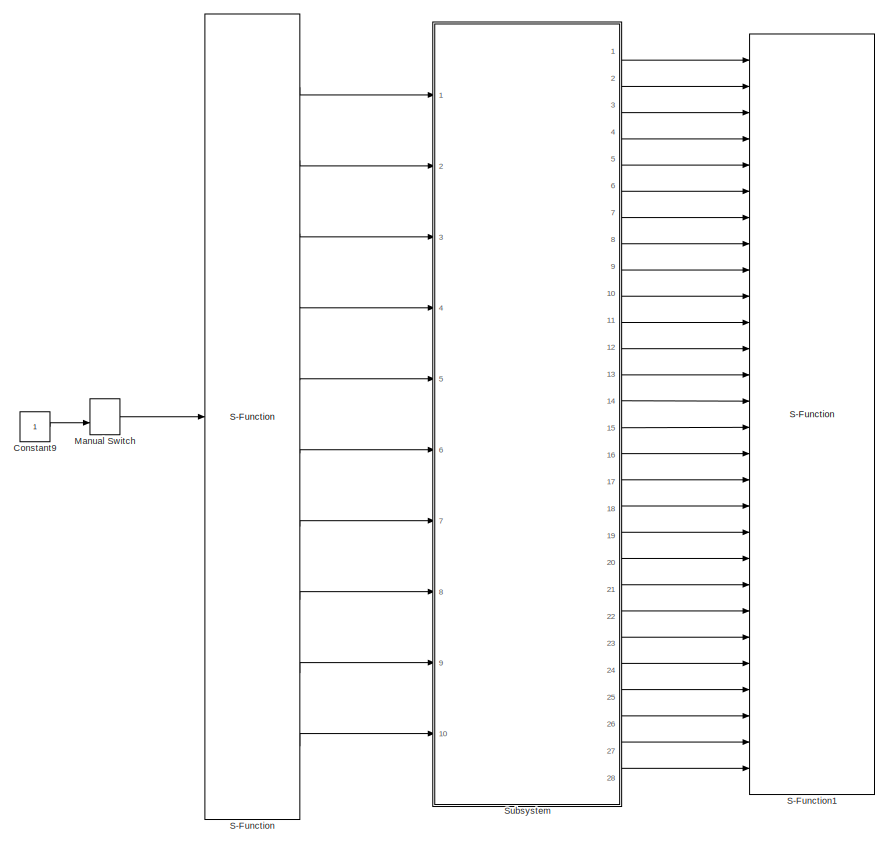
[diagram: root canvas - part 1/3, left side, full height]
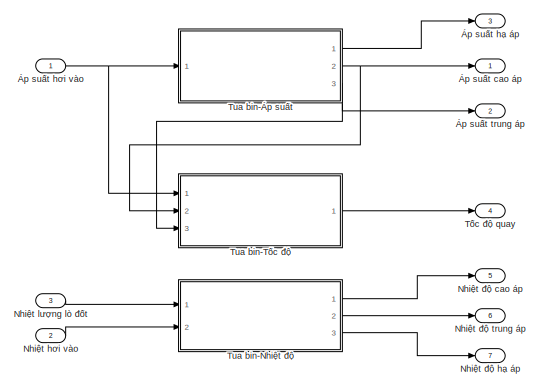
[diagram: root canvas - part 2/3, top right region]
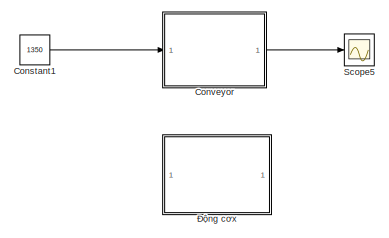
[diagram: root canvas - part 3/3, central region]
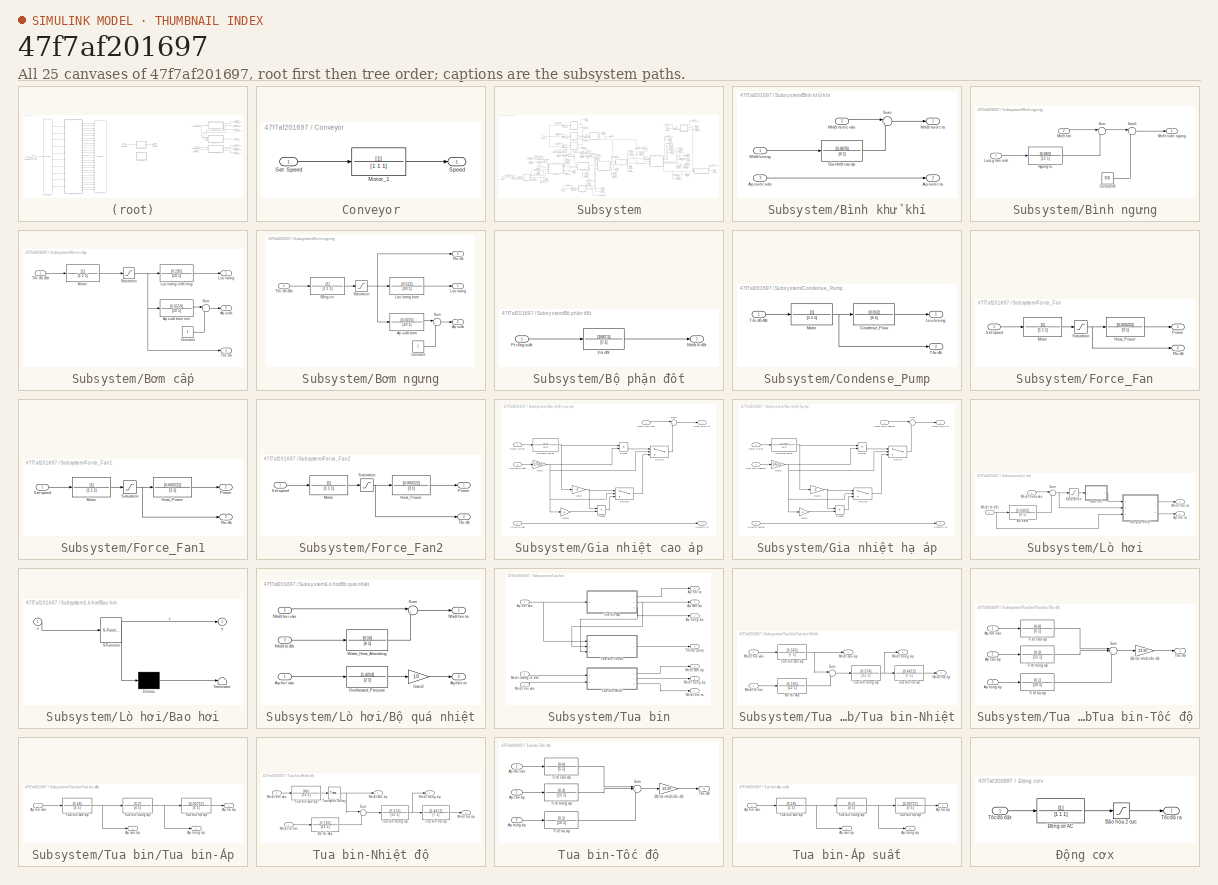
[diagram: thumbnail index - all 25 canvases of the model, root first then tree order]
MODEL slx_47f7af201697
KIND model
CONFIG AbsTol = auto
CONFIG EnableMultiTasking = off
CONFIG FixedStep = 0.1
CONFIG MaxStep = auto
CONFIG MinStep = auto
CONFIG RelTol = 1e-3
CONFIG SampleTimeConstraint = Unconstrained
CONFIG Solver = ode4
CONFIG SolverName = ode4
CONFIG StartTime = 0.0
CONFIG StopTime = 500
BLOCK [Constant] Constant1
  Commented = on
  Value = 1350
BLOCK [Constant] Constant9
BLOCK [SubSystem] Conveyor
  Commented = on
  Ports = [1, 1]
  RequestExecContextInheritance = off
BLOCK [TransferFcn] Conveyor/Motor_1
  Denominator = [1 1 1]
BLOCK [Inport] Conveyor/Set Speed
  IconDisplay = Port number
BLOCK [Outport] Conveyor/Speed
  IconDisplay = Port number
BLOCK [ManualSwitch] Manual Switch
  CurrentSetting = 0
BLOCK [Inport] Nhiệt hơi vào
  IconDisplay = Port number
  Port = 2
BLOCK [Inport] Nhiệt lượng lò đốt
  IconDisplay = Port number
  Port = 3
BLOCK [Outport] Nhiệt độ cao áp
  IconDisplay = Port number
  Port = 5
BLOCK [Outport] Nhiệt độ hạ áp
  IconDisplay = Port number
  Port = 7
BLOCK [Outport] Nhiệt độ trung áp
  IconDisplay = Port number
  Port = 6
BLOCK [S-Function] S-Function
  EnableBusSupport = off
  FunctionName = ModbusRead
  Parameters = '127.0.0.1' 502
  Ports = [1, 10]
  SFcnIsStateOwnerBlock = off
  SFunctionDeploymentMode = off
BLOCK [S-Function] S-Function1
  EnableBusSupport = off
  FunctionName = ModbusWrite
  Parameters = '127.0.0.1' 502
  Ports = [28]
  SFcnIsStateOwnerBlock = off
  SFunctionDeploymentMode = off
BLOCK [Scope] Scope5
  Commented = on
  Floating = off
  NumInputPorts = 1
  Ports = [1]
  ScopeSpecificationString = Simulink.scopes.TimeScopeBlockCfg('CurrentConfiguration', extmgr.ConfigurationSet(extmgr.Configuration('Core','General UI',true),extmgr.Configuration('Core','Source UI',true),extmgr.Configuration('Sources','WiredSimulink',true,'DataLoggingVariableName','ScopeData1'),extmgr.Configuration('Visuals','Time Domain',true,'SerializedDisplays',{struct('MinYLimReal','-196.25506','MaxYLimReal','1766.29552',...<+1413ch>
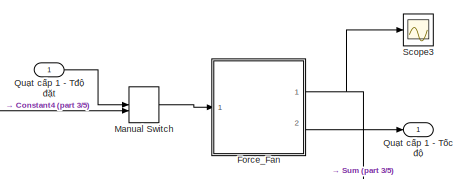
[diagram: Subsystem - part 1/5, top left region]
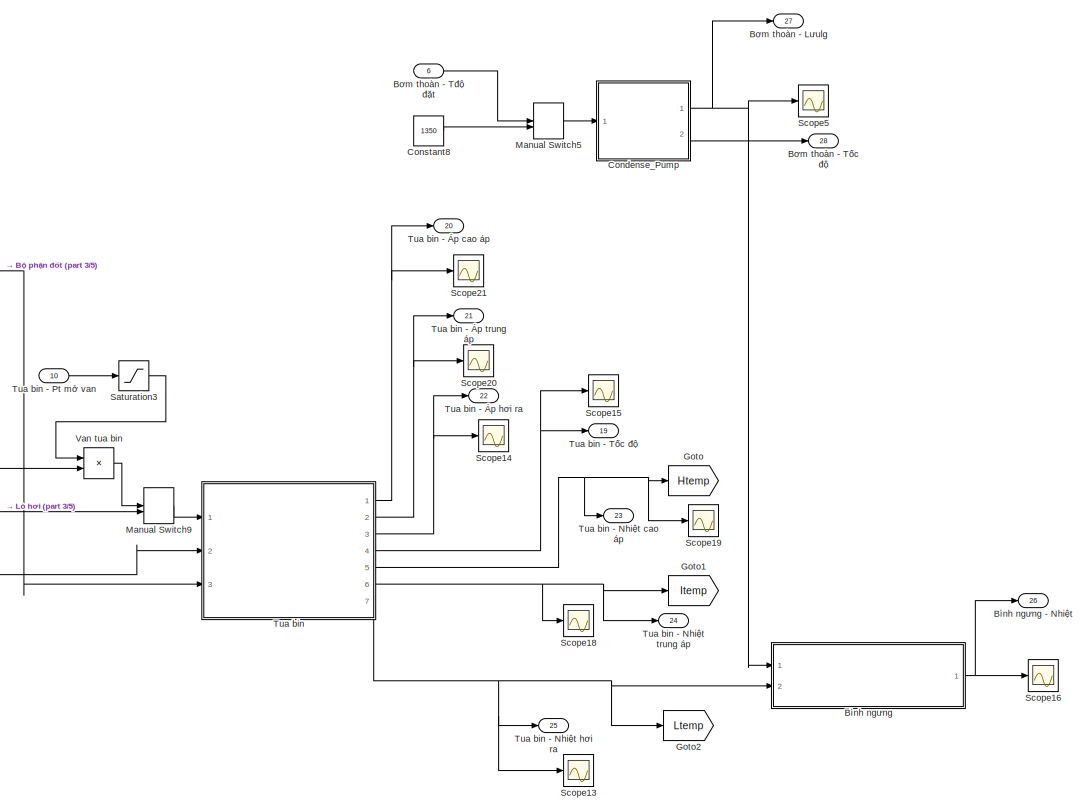
[diagram: Subsystem - part 2/5, right side, full height]
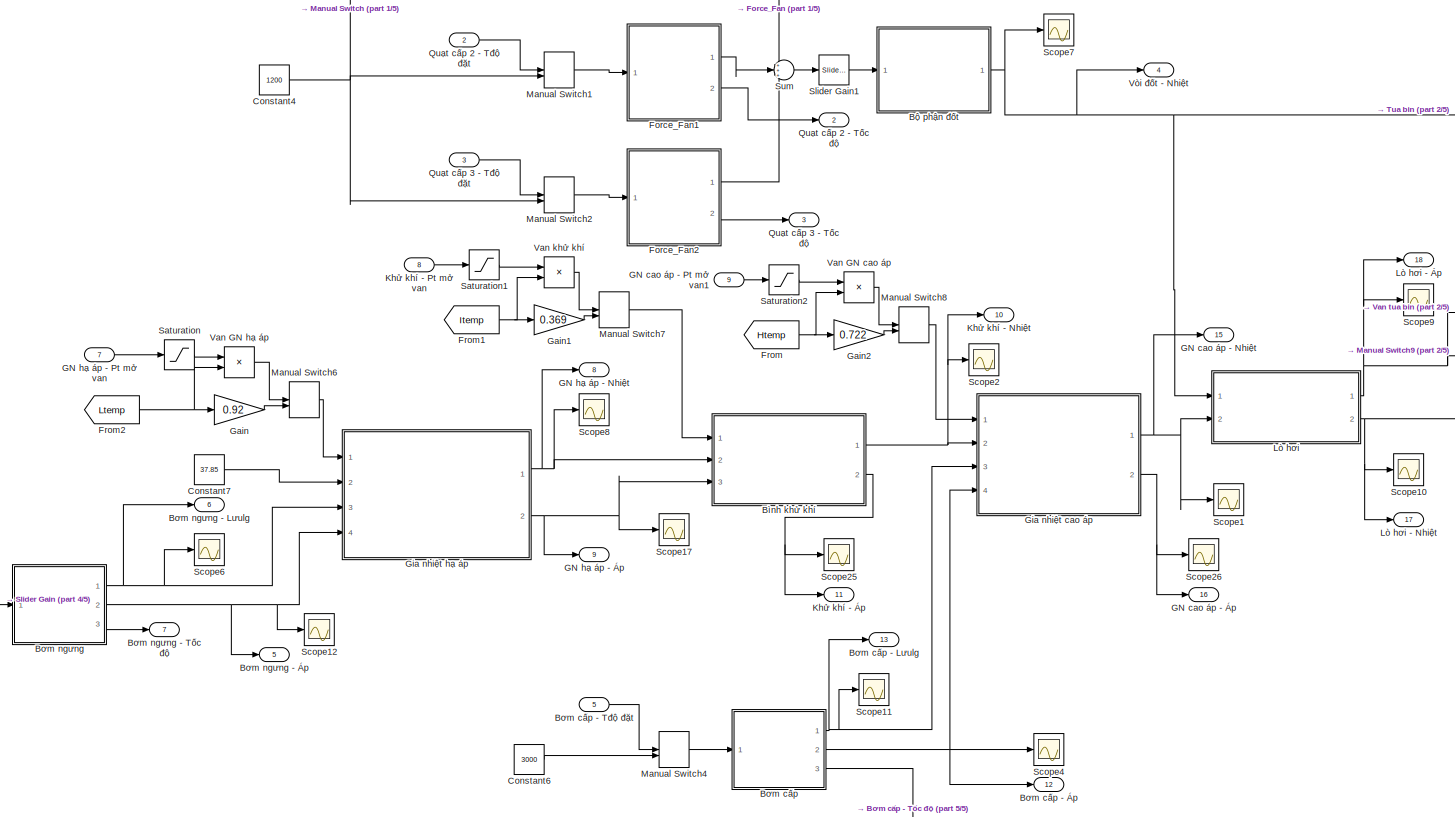
[diagram: Subsystem - part 3/5, center side, full height]
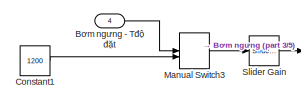
[diagram: Subsystem - part 4/5, bottom left region]
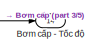
[diagram: Subsystem - part 5/5, bottom center region]
BLOCK [SubSystem] Subsystem
  Ports = [10, 28]
  RequestExecContextInheritance = off
BLOCK [SubSystem] Subsystem/Bình khử khí
  Ports = [3, 2]
  RequestExecContextInheritance = off
BLOCK [TransferFcn] Subsystem/Bình khử khí/Gia nhiệt cao áp
  Denominator = [8 1]
  Numerator = [0.4676]
BLOCK [Inport] Subsystem/Bình khử khí/Nhiệt lượng
  IconDisplay = Port number
BLOCK [Outport] Subsystem/Bình khử khí/Nhiệt nước ra
  IconDisplay = Port number
BLOCK [Inport] Subsystem/Bình khử khí/Nhiệt nước vào
  IconDisplay = Port number
  Port = 2
BLOCK [Sum] Subsystem/Bình khử khí/Sum
  IconShape = round
  InputSameDT = off
  Inputs = |++
  OutDataTypeStr = Inherit: Inherit via internal rule
  Ports = [2, 1]
  SaturateOnIntegerOverflow = off
BLOCK [Outport] Subsystem/Bình khử khí/Áp nước ra
  IconDisplay = Port number
  Port = 2
BLOCK [Inport] Subsystem/Bình khử khí/Áp nước vào
  IconDisplay = Port number
  Port = 3
BLOCK [SubSystem] Subsystem/Bình ngưng
  Ports = [2, 1]
  RequestExecContextInheritance = off
BLOCK [Outport] Subsystem/Bình ngưng - Nhiệt
  IconDisplay = Port number
  Port = 26
BLOCK [Constant] Subsystem/Bình ngưng/Constant8
  Value = 37.85
BLOCK [Inport] Subsystem/Bình ngưng/LưuLg làm mát
  IconDisplay = Port number
BLOCK [TransferFcn] Subsystem/Bình ngưng/Ngưng tụ
  Denominator = [12 1]
  Numerator = [6.883]
BLOCK [Inport] Subsystem/Bình ngưng/Nhiệt hơi
  IconDisplay = Port number
  Port = 2
BLOCK [Outport] Subsystem/Bình ngưng/Nhiệt nước ngưng
  IconDisplay = Port number
BLOCK [Sum] Subsystem/Bình ngưng/Sum
  IconShape = round
  InputSameDT = off
  Inputs = |+-
  OutDataTypeStr = Inherit: Inherit via internal rule
  Ports = [2, 1]
  SaturateOnIntegerOverflow = off
BLOCK [Sum] Subsystem/Bình ngưng/Sum1
  IconShape = round
  InputSameDT = off
  Inputs = |++
  OutDataTypeStr = Inherit: Inherit via internal rule
  Ports = [2, 1]
  SaturateOnIntegerOverflow = off
BLOCK [SubSystem] Subsystem/Bơm cấp
  Ports = [1, 3]
  RequestExecContextInheritance = off
BLOCK [Outport] Subsystem/Bơm cấp - Lưulg
  IconDisplay = Port number
  Port = 13
BLOCK [Inport] Subsystem/Bơm cấp - Tđộ đặt
  IconDisplay = Port number
  Port = 5
BLOCK [Outport] Subsystem/Bơm cấp - Tốc độ
  IconDisplay = Port number
  Port = 14
BLOCK [Outport] Subsystem/Bơm cấp - Áp
  IconDisplay = Port number
  Port = 12
BLOCK [Constant] Subsystem/Bơm cấp/Constant
BLOCK [Outport] Subsystem/Bơm cấp/Lưu lượng
  IconDisplay = Port number
BLOCK [TransferFcn] Subsystem/Bơm cấp/Lưu lượng chất lỏng
  Denominator = [10 1]
  Numerator = [0.195]
BLOCK [TransferFcn] Subsystem/Bơm cấp/Motor
  Denominator = [1 1 1]
BLOCK [Saturate] Subsystem/Bơm cấp/Saturation
  InputPortMap = u0
  LowerLimit = -5645
  Ports = [1, 1]
  UpperLimit = 5645
BLOCK [Sum] Subsystem/Bơm cấp/Sum
  IconShape = round
  InputSameDT = off
  Inputs = |++
  OutDataTypeStr = Inherit: Inherit via internal rule
  Ports = [2, 1]
  SaturateOnIntegerOverflow = off
BLOCK [Outport] Subsystem/Bơm cấp/Tốc độ
  IconDisplay = Port number
  Port = 3
BLOCK [Inport] Subsystem/Bơm cấp/Tốc độ đặt
  IconDisplay = Port number
BLOCK [Outport] Subsystem/Bơm cấp/Áp suất
  IconDisplay = Port number
  Port = 2
BLOCK [TransferFcn] Subsystem/Bơm cấp/Áp suất bơm nén
  Denominator = [10 1]
  Numerator = [0.0559]
BLOCK [SubSystem] Subsystem/Bơm ngưng
  Ports = [1, 3]
  RequestExecContextInheritance = off
BLOCK [Outport] Subsystem/Bơm ngưng - Lưulg
  IconDisplay = Port number
  Port = 6
BLOCK [Inport] Subsystem/Bơm ngưng - Tđộ đặt
  IconDisplay = Port number
  Port = 4
BLOCK [Outport] Subsystem/Bơm ngưng - Tốc độ
  IconDisplay = Port number
  Port = 7
BLOCK [Outport] Subsystem/Bơm ngưng - Áp
  IconDisplay = Port number
  Port = 5
BLOCK [Constant] Subsystem/Bơm ngưng/Constant
BLOCK [Outport] Subsystem/Bơm ngưng/Lưu lượng
  IconDisplay = Port number
BLOCK [TransferFcn] Subsystem/Bơm ngưng/Lưu lượng bơm
  Denominator = [10 1]
  Numerator = [0.512]
BLOCK [Saturate] Subsystem/Bơm ngưng/Saturation
  InputPortMap = u0
  LowerLimit = -1485
  Ports = [1, 1]
  UpperLimit = 1485
BLOCK [Sum] Subsystem/Bơm ngưng/Sum
  IconShape = round
  InputSameDT = off
  Inputs = |++
  OutDataTypeStr = Inherit: Inherit via internal rule
  Ports = [2, 1]
  SaturateOnIntegerOverflow = off
BLOCK [Outport] Subsystem/Bơm ngưng/Tốc độ
  IconDisplay = Port number
  Port = 3
BLOCK [Inport] Subsystem/Bơm ngưng/Tốc độ đặt
  IconDisplay = Port number
BLOCK [Outport] Subsystem/Bơm ngưng/Áp suất
  IconDisplay = Port number
  Port = 2
BLOCK [TransferFcn] Subsystem/Bơm ngưng/Áp suất bơm
  Denominator = [10 1]
  Numerator = [0.0225]
BLOCK [TransferFcn] Subsystem/Bơm ngưng/Động cơ
  Denominator = [1 1 1]
BLOCK [Outport] Subsystem/Bơm thoàn - Lưulg
  IconDisplay = Port number
  Port = 27
BLOCK [Inport] Subsystem/Bơm thoàn - Tđộ đặt
  IconDisplay = Port number
  Port = 6
BLOCK [Outport] Subsystem/Bơm thoàn - Tốc độ
  IconDisplay = Port number
  Port = 28
BLOCK [SubSystem] Subsystem/Bộ phận đốt
  Ports = [1, 1]
  RequestExecContextInheritance = off
BLOCK [Outport] Subsystem/Bộ phận đốt/Nhiệt lò đốt
  IconDisplay = Port number
BLOCK [Inport] Subsystem/Bộ phận đốt/Pt công suất
  IconDisplay = Port number
BLOCK [TransferFcn] Subsystem/Bộ phận đốt/Vòi đốt
  Denominator = [5 1]
  Numerator = [1687.5]
BLOCK [SubSystem] Subsystem/Condense_Pump
  Ports = [1, 2]
  RequestExecContextInheritance = off
BLOCK [TransferFcn] Subsystem/Condense_Pump/Condense_Flow
  Denominator = [6 1]
  Numerator = [0.012]
BLOCK [Outport] Subsystem/Condense_Pump/Lưu lượng
  IconDisplay = Port number
BLOCK [TransferFcn] Subsystem/Condense_Pump/Motor
  Denominator = [1 1 1]
BLOCK [Outport] Subsystem/Condense_Pump/Tốc độ
  IconDisplay = Port number
  Port = 2
BLOCK [Inport] Subsystem/Condense_Pump/Tốc độ đặt
  IconDisplay = Port number
BLOCK [Constant] Subsystem/Constant1
  Value = 1200
BLOCK [Constant] Subsystem/Constant4
  Value = 1200
BLOCK [Constant] Subsystem/Constant6
  Value = 3000
BLOCK [Constant] Subsystem/Constant7
  Value = 37.85
BLOCK [Constant] Subsystem/Constant8
  Value = 1350
BLOCK [SubSystem] Subsystem/Force_Fan
  Ports = [1, 2]
  RequestExecContextInheritance = off
BLOCK [TransferFcn] Subsystem/Force_Fan/Heat_Power
  Denominator = [3 1]
  Numerator = [0.000222]
BLOCK [TransferFcn] Subsystem/Force_Fan/Motor
  Denominator = [1 1 1]
BLOCK [Outport] Subsystem/Force_Fan/Power
  IconDisplay = Port number
BLOCK [Saturate] Subsystem/Force_Fan/Saturation
  InputPortMap = u0
  LowerLimit = -1485
  Ports = [1, 1]
  UpperLimit = 1485
BLOCK [Inport] Subsystem/Force_Fan/Set speed
  IconDisplay = Port number
BLOCK [Outport] Subsystem/Force_Fan/Tốc độ
  IconDisplay = Port number
  Port = 2
BLOCK [SubSystem] Subsystem/Force_Fan1
  Ports = [1, 2]
  RequestExecContextInheritance = off
BLOCK [TransferFcn] Subsystem/Force_Fan1/Heat_Power
  Denominator = [3 1]
  Numerator = [0.000222]
BLOCK [TransferFcn] Subsystem/Force_Fan1/Motor
  Denominator = [1 1 1]
BLOCK [Outport] Subsystem/Force_Fan1/Power
  IconDisplay = Port number
BLOCK [Saturate] Subsystem/Force_Fan1/Saturation
  InputPortMap = u0
  LowerLimit = -1485
  Ports = [1, 1]
  UpperLimit = 1485
BLOCK [Inport] Subsystem/Force_Fan1/Set speed
  IconDisplay = Port number
BLOCK [Outport] Subsystem/Force_Fan1/Tốc độ
  IconDisplay = Port number
  Port = 2
BLOCK [SubSystem] Subsystem/Force_Fan2
  Ports = [1, 2]
  RequestExecContextInheritance = off
BLOCK [TransferFcn] Subsystem/Force_Fan2/Heat_Power
  Denominator = [3 1]
  Numerator = [0.000222]
BLOCK [TransferFcn] Subsystem/Force_Fan2/Motor
  Denominator = [1 1 1]
BLOCK [Outport] Subsystem/Force_Fan2/Power
  IconDisplay = Port number
BLOCK [Saturate] Subsystem/Force_Fan2/Saturation
  InputPortMap = u0
  LowerLimit = -1485
  Ports = [1, 1]
  UpperLimit = 1485
BLOCK [Inport] Subsystem/Force_Fan2/Set speed
  IconDisplay = Port number
BLOCK [Outport] Subsystem/Force_Fan2/Tốc độ
  IconDisplay = Port number
  Port = 2
BLOCK [From] Subsystem/From
  GotoTag = Htemp
BLOCK [From] Subsystem/From1
  GotoTag = Itemp
BLOCK [From] Subsystem/From2
  GotoTag = Ltemp
BLOCK [Outport] Subsystem/GN cao áp - Nhiệt
  IconDisplay = Port number
  Port = 15
BLOCK [Inport] Subsystem/GN cao áp - Pt mở van1
  IconDisplay = Port number
  Port = 9
BLOCK [Outport] Subsystem/GN cao áp - Áp
  IconDisplay = Port number
  Port = 16
BLOCK [Outport] Subsystem/GN hạ áp - Nhiệt
  IconDisplay = Port number
  Port = 8
BLOCK [Inport] Subsystem/GN hạ áp - Pt mở van
  IconDisplay = Port number
  Port = 7
BLOCK [Outport] Subsystem/GN hạ áp - Áp
  IconDisplay = Port number
  Port = 9
BLOCK [Gain] Subsystem/Gain
  Gain = 0.92
  OutDataTypeStr = Inherit: Inherit via internal rule
  ParamDataTypeStr = Inherit: Inherit via internal rule
  SaturateOnIntegerOverflow = off
BLOCK [Gain] Subsystem/Gain1
  Gain = 0.369
  OutDataTypeStr = Inherit: Inherit via internal rule
  ParamDataTypeStr = Inherit: Inherit via internal rule
  SaturateOnIntegerOverflow = off
BLOCK [Gain] Subsystem/Gain2
  Gain = 0.722
  OutDataTypeStr = Inherit: Inherit via internal rule
  ParamDataTypeStr = Inherit: Inherit via internal rule
  SaturateOnIntegerOverflow = off
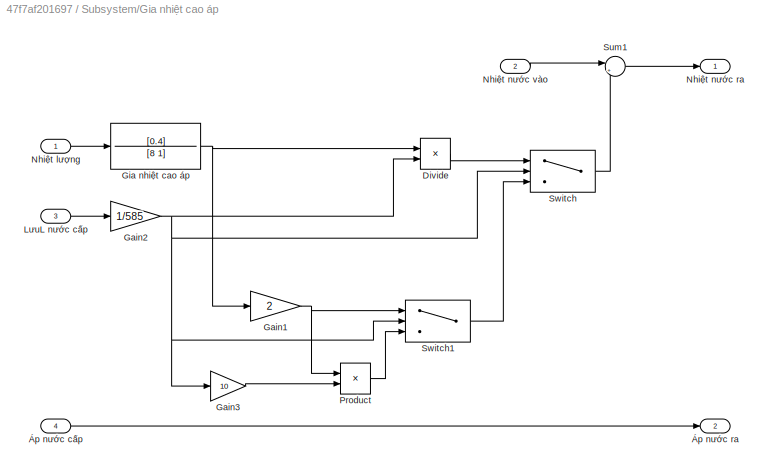
BLOCK [SubSystem] Subsystem/Gia nhiệt cao áp
  Ports = [4, 2]
  RequestExecContextInheritance = off
BLOCK [Product] Subsystem/Gia nhiệt cao áp/Divide
  InputSameDT = off
  Inputs = */
  OutDataTypeStr = Inherit: Inherit via internal rule
  Ports = [2, 1]
  RndMeth = Floor
  SaturateOnIntegerOverflow = off
BLOCK [Gain] Subsystem/Gia nhiệt cao áp/Gain1
  Gain = 2
  OutDataTypeStr = Inherit: Inherit via internal rule
  ParamDataTypeStr = Inherit: Inherit via internal rule
  SaturateOnIntegerOverflow = off
BLOCK [Gain] Subsystem/Gia nhiệt cao áp/Gain2
  Gain = 1/585
  OutDataTypeStr = Inherit: Inherit via internal rule
  ParamDataTypeStr = Inherit: Inherit via internal rule
  SaturateOnIntegerOverflow = off
BLOCK [Gain] Subsystem/Gia nhiệt cao áp/Gain3
  Gain = 10
  OutDataTypeStr = Inherit: Inherit via internal rule
  ParamDataTypeStr = Inherit: Inherit via internal rule
  SaturateOnIntegerOverflow = off
BLOCK [TransferFcn] Subsystem/Gia nhiệt cao áp/Gia nhiệt cao áp
  Denominator = [8 1]
  Numerator = [0.4]
BLOCK [Inport] Subsystem/Gia nhiệt cao áp/LưuL nước cấp
  IconDisplay = Port number
  Port = 3
BLOCK [Inport] Subsystem/Gia nhiệt cao áp/Nhiệt lượng
  IconDisplay = Port number
BLOCK [Outport] Subsystem/Gia nhiệt cao áp/Nhiệt nước ra
  IconDisplay = Port number
BLOCK [Inport] Subsystem/Gia nhiệt cao áp/Nhiệt nước vào
  IconDisplay = Port number
  Port = 2
BLOCK [Product] Subsystem/Gia nhiệt cao áp/Product
  InputSameDT = off
  OutDataTypeStr = Inherit: Inherit via internal rule
  Ports = [2, 1]
  RndMeth = Floor
  SaturateOnIntegerOverflow = off
BLOCK [Sum] Subsystem/Gia nhiệt cao áp/Sum1
  IconShape = round
  InputSameDT = off
  Inputs = |++
  OutDataTypeStr = Inherit: Inherit via internal rule
  Ports = [2, 1]
  SaturateOnIntegerOverflow = off
BLOCK [Switch] Subsystem/Gia nhiệt cao áp/Switch
  InputSameDT = off
  SaturateOnIntegerOverflow = off
  Threshold = 0.5
BLOCK [Switch] Subsystem/Gia nhiệt cao áp/Switch1
  InputSameDT = off
  SaturateOnIntegerOverflow = off
  Threshold = 0.1
BLOCK [Inport] Subsystem/Gia nhiệt cao áp/Áp nước cấp
  IconDisplay = Port number
  Port = 4
BLOCK [Outport] Subsystem/Gia nhiệt cao áp/Áp nước ra
  IconDisplay = Port number
  Port = 2
BLOCK [SubSystem] Subsystem/Gia nhiệt hạ áp
  Ports = [4, 2]
  RequestExecContextInheritance = off
BLOCK [Product] Subsystem/Gia nhiệt hạ áp/Divide
  InputSameDT = off
  Inputs = */
  OutDataTypeStr = Inherit: Inherit via internal rule
  Ports = [2, 1]
  RndMeth = Floor
  SaturateOnIntegerOverflow = off
BLOCK [Gain] Subsystem/Gia nhiệt hạ áp/Gain1
  Gain = 2
  OutDataTypeStr = Inherit: Inherit via internal rule
  ParamDataTypeStr = Inherit: Inherit via internal rule
  SaturateOnIntegerOverflow = off
BLOCK [Gain] Subsystem/Gia nhiệt hạ áp/Gain2
  Gain = 1/615
  OutDataTypeStr = Inherit: Inherit via internal rule
  ParamDataTypeStr = Inherit: Inherit via internal rule
  SaturateOnIntegerOverflow = off
BLOCK [Gain] Subsystem/Gia nhiệt hạ áp/Gain3
  Gain = 10
  OutDataTypeStr = Inherit: Inherit via internal rule
  ParamDataTypeStr = Inherit: Inherit via internal rule
  SaturateOnIntegerOverflow = off
BLOCK [TransferFcn] Subsystem/Gia nhiệt hạ áp/Gia nhiệt hạ áp
  Denominator = [8 1]
  Numerator = [0.7477]
BLOCK [Inport] Subsystem/Gia nhiệt hạ áp/LưuL nước ngưng
  IconDisplay = Port number
  Port = 3
BLOCK [Inport] Subsystem/Gia nhiệt hạ áp/Nhiệt lượng
  IconDisplay = Port number
BLOCK [Inport] Subsystem/Gia nhiệt hạ áp/Nhiệt nước ngưng
  IconDisplay = Port number
  Port = 2
BLOCK [Outport] Subsystem/Gia nhiệt hạ áp/Nhiệt nước ra
  IconDisplay = Port number
BLOCK [Product] Subsystem/Gia nhiệt hạ áp/Product
  InputSameDT = off
  OutDataTypeStr = Inherit: Inherit via internal rule
  Ports = [2, 1]
  RndMeth = Floor
  SaturateOnIntegerOverflow = off
BLOCK [Sum] Subsystem/Gia nhiệt hạ áp/Sum
  IconShape = round
  InputSameDT = off
  Inputs = |++
  OutDataTypeStr = Inherit: Inherit via internal rule
  Ports = [2, 1]
  SaturateOnIntegerOverflow = off
BLOCK [Switch] Subsystem/Gia nhiệt hạ áp/Switch
  InputSameDT = off
  SaturateOnIntegerOverflow = off
  Threshold = 0.5
BLOCK [Switch] Subsystem/Gia nhiệt hạ áp/Switch1
  InputSameDT = off
  SaturateOnIntegerOverflow = off
  Threshold = 0.1
BLOCK [Inport] Subsystem/Gia nhiệt hạ áp/Áp nước ngưng
  IconDisplay = Port number
  Port = 4
BLOCK [Outport] Subsystem/Gia nhiệt hạ áp/Áp nước ra
  IconDisplay = Port number
  Port = 2
BLOCK [Goto] Subsystem/Goto
  GotoTag = Htemp
BLOCK [Goto] Subsystem/Goto1
  GotoTag = Itemp
BLOCK [Goto] Subsystem/Goto2
  GotoTag = Ltemp
BLOCK [Outport] Subsystem/Khử khí - Nhiệt
  IconDisplay = Port number
  Port = 10
BLOCK [Inport] Subsystem/Khử khí - Pt mở van
  IconDisplay = Port number
  Port = 8
BLOCK [Outport] Subsystem/Khử khí - Áp
  IconDisplay = Port number
  Port = 11
BLOCK [SubSystem] Subsystem/Lò hơi
  Ports = [2, 2]
  RequestExecContextInheritance = off
BLOCK [Outport] Subsystem/Lò hơi - Nhiệt
  IconDisplay = Port number
  Port = 17
BLOCK [Outport] Subsystem/Lò hơi - Áp
  IconDisplay = Port number
  Port = 18
BLOCK [SubSystem] Subsystem/Lò hơi/Bao hơi
  ErrorFcn = Stateflow.Translate.translate
  PermitHierarchicalResolution = ExplicitOnly
  Ports = [1, 1]
  RequestExecContextInheritance = off
  SFBlockType = MATLAB Function
  TreatAsAtomicUnit = on
BLOCK [Demux] Subsystem/Lò hơi/Bao hơi/ Demux 
  Outputs = 1
  Ports = [1, 1]
BLOCK [S-Function] Subsystem/Lò hơi/Bao hơi/ SFunction 
  EnableBusSupport = on
  FunctionName = sf_sfun
  PortCounts = [1 2]
  Ports = [1, 2]
  SFcnIsStateOwnerBlock = off
  SFunctionDeploymentMode = off
  Tag = Stateflow S-Function Luanvancu 2
BLOCK [Terminator] Subsystem/Lò hơi/Bao hơi/ Terminator 
BLOCK [Inport] Subsystem/Lò hơi/Bao hơi/u
  IconDisplay = Port number
BLOCK [Outport] Subsystem/Lò hơi/Bao hơi/y
  IconDisplay = Port number
BLOCK [TransferFcn] Subsystem/Lò hơi/Bộ hâm
  Denominator = [8 1]
  Numerator = [0.0405]
BLOCK [SubSystem] Subsystem/Lò hơi/Bộ quá nhiệt
  Ports = [3, 2]
  RequestExecContextInheritance = off
BLOCK [Gain] Subsystem/Lò hơi/Bộ quá nhiệt/Gain3
  Gain = 10
  OutDataTypeStr = Inherit: Inherit via internal rule
  ParamDataTypeStr = Inherit: Inherit via internal rule
  SaturateOnIntegerOverflow = off
BLOCK [Outport] Subsystem/Lò hơi/Bộ quá nhiệt/Nhiệt hơi ra
  IconDisplay = Port number
BLOCK [Inport] Subsystem/Lò hơi/Bộ quá nhiệt/Nhiệt hơi vào
  IconDisplay = Port number
  Port = 2
BLOCK [Inport] Subsystem/Lò hơi/Bộ quá nhiệt/Nhiệt lò đốt
  IconDisplay = Port number
  Port = 3
BLOCK [TransferFcn] Subsystem/Lò hơi/Bộ quá nhiệt/Overheated_Pressure
  Denominator = [2 1]
  Numerator = [1.4214]
BLOCK [Sum] Subsystem/Lò hơi/Bộ quá nhiệt/Sum
  IconShape = round
  InputSameDT = off
  Inputs = |++
  OutDataTypeStr = Inherit: Inherit via internal rule
  Ports = [2, 1]
  SaturateOnIntegerOverflow = off
BLOCK [TransferFcn] Subsystem/Lò hơi/Bộ quá nhiệt/Water_Heat_Absorbing
  Denominator = [6 1]
  Numerator = [0.16]
BLOCK [Outport] Subsystem/Lò hơi/Bộ quá nhiệt/Áp hơi ra
  IconDisplay = Port number
  Port = 2
BLOCK [Inport] Subsystem/Lò hơi/Bộ quá nhiệt/Áp hơi vào
  IconDisplay = Port number
BLOCK [Outport] Subsystem/Lò hơi/Nhiệt hơi ra
  IconDisplay = Port number
  Port = 2
BLOCK [Inport] Subsystem/Lò hơi/Nhiệt lò đốt
  IconDisplay = Port number
BLOCK [Inport] Subsystem/Lò hơi/Nhiệt nước vào
  IconDisplay = Port number
  Port = 2
BLOCK [Saturate] Subsystem/Lò hơi/Saturation
  InputPortMap = u0
  LowerLimit = 0
  Ports = [1, 1]
  UpperLimit = 425
BLOCK [Sum] Subsystem/Lò hơi/Sum
  IconShape = round
  InputSameDT = off
  Inputs = |++
  OutDataTypeStr = Inherit: Inherit via internal rule
  Ports = [2, 1]
  SaturateOnIntegerOverflow = off
BLOCK [Outport] Subsystem/Lò hơi/Áp hơi ra
  IconDisplay = Port number
BLOCK [ManualSwitch] Subsystem/Manual Switch
BLOCK [ManualSwitch] Subsystem/Manual Switch1
BLOCK [ManualSwitch] Subsystem/Manual Switch2
BLOCK [ManualSwitch] Subsystem/Manual Switch3
BLOCK [ManualSwitch] Subsystem/Manual Switch4
BLOCK [ManualSwitch] Subsystem/Manual Switch5
BLOCK [ManualSwitch] Subsystem/Manual Switch6
BLOCK [ManualSwitch] Subsystem/Manual Switch7
BLOCK [ManualSwitch] Subsystem/Manual Switch8
BLOCK [ManualSwitch] Subsystem/Manual Switch9
BLOCK [Inport] Subsystem/Quạt cấp 1 - Tđộ đặt
  IconDisplay = Port number
BLOCK [Outport] Subsystem/Quạt cấp 1 - Tốc độ
  IconDisplay = Port number
BLOCK [Inport] Subsystem/Quạt cấp 2 - Tđộ đặt
  IconDisplay = Port number
  Port = 2
BLOCK [Outport] Subsystem/Quạt cấp 2 - Tốc độ
  IconDisplay = Port number
  Port = 2
BLOCK [Inport] Subsystem/Quạt cấp 3 - Tđộ đặt
  IconDisplay = Port number
  Port = 3
BLOCK [Outport] Subsystem/Quạt cấp 3 - Tốc độ
  IconDisplay = Port number
  Port = 3
BLOCK [Saturate] Subsystem/Saturation
  InputPortMap = u0
  LowerLimit = 0
  Ports = [1, 1]
  UpperLimit = 1
BLOCK [Saturate] Subsystem/Saturation1
  InputPortMap = u0
  LowerLimit = 0
  Ports = [1, 1]
  UpperLimit = 1
BLOCK [Saturate] Subsystem/Saturation2
  InputPortMap = u0
  LowerLimit = 0
  Ports = [1, 1]
  UpperLimit = 1
BLOCK [Saturate] Subsystem/Saturation3
  InputPortMap = u0
  LowerLimit = 0
  Ports = [1, 1]
  UpperLimit = 1
BLOCK [Scope] Subsystem/Scope1
  Floating = off
  NumInputPorts = 1
  Ports = [1]
  ScopeSpecificationString = Simulink.scopes.TimeScopeBlockCfg('CurrentConfiguration', extmgr.ConfigurationSet(extmgr.Configuration('Core','General UI',true),extmgr.Configuration('Core','Source UI',true),extmgr.Configuration('Sources','WiredSimulink',true,'DataLoggingVariableName','ScopeData1'),extmgr.Configuration('Visuals','Time Domain',true,'SerializedDisplays',{struct('MinYLimReal','-7.03524','MaxYLimReal','441.81715','YL...<+1459ch>
BLOCK [Scope] Subsystem/Scope10
  Floating = off
  NumInputPorts = 1
  Ports = [1]
  ScopeSpecificationString = Simulink.scopes.TimeScopeBlockCfg('CurrentConfiguration', extmgr.ConfigurationSet(extmgr.Configuration('Core','General UI',true),extmgr.Configuration('Core','Source UI',true),extmgr.Configuration('Sources','WiredSimulink',true,'DataLoggingVariableName','ScopeData2'),extmgr.Configuration('Visuals','Time Domain',true,'SerializedDisplays',{struct('MinYLimReal','-31.21135','MaxYLimReal','659.40211','Y...<+1451ch>
BLOCK [Scope] Subsystem/Scope11
  Floating = off
  NumInputPorts = 1
  Ports = [1]
  ScopeSpecificationString = Simulink.scopes.TimeScopeBlockCfg('CurrentConfiguration', extmgr.ConfigurationSet(extmgr.Configuration('Core','General UI',true),extmgr.Configuration('Core','Source UI',true),extmgr.Configuration('Sources','WiredSimulink',true,'DataLoggingVariableName','ScopeData3'),extmgr.Configuration('Visuals','Time Domain',true,'SerializedDisplays',{struct('MinYLimReal','580.32002','MaxYLimReal','587.56174','Y...<+1454ch>
BLOCK [Scope] Subsystem/Scope12
  Floating = off
  NumInputPorts = 1
  Ports = [1]
  ScopeSpecificationString = Simulink.scopes.TimeScopeBlockCfg('CurrentConfiguration', extmgr.ConfigurationSet(extmgr.Configuration('Core','General UI',true),extmgr.Configuration('Core','Source UI',true),extmgr.Configuration('Sources','WiredSimulink',true,'DataLoggingVariableName','ScopeData4'),extmgr.Configuration('Visuals','Time Domain',true,'SerializedDisplays',{struct('MinYLimReal','-3.02597','MaxYLimReal','37.23375','YLa...<+1436ch>
BLOCK [Scope] Subsystem/Scope13
  Floating = off
  NumInputPorts = 1
  Ports = [1]
  ScopeSpecificationString = Simulink.scopes.TimeScopeBlockCfg('CurrentConfiguration', extmgr.ConfigurationSet(extmgr.Configuration('Core','General UI',true),extmgr.Configuration('Core','Source UI',true),extmgr.Configuration('Sources','WiredSimulink',true,'DataLoggingVariableName','ScopeData5'),extmgr.Configuration('Visuals','Time Domain',true,'SerializedDisplays',{struct('MinYLimReal','-18.75672','MaxYLimReal','168.81047','Y...<+1498ch>
BLOCK [Scope] Subsystem/Scope14
  Floating = off
  NumInputPorts = 1
  Ports = [1]
  ScopeSpecificationString = Simulink.scopes.TimeScopeBlockCfg('CurrentConfiguration', extmgr.ConfigurationSet(extmgr.Configuration('Core','General UI',true),extmgr.Configuration('Core','Source UI',true),extmgr.Configuration('Sources','WiredSimulink',true,'DataLoggingVariableName','ScopeData6'),extmgr.Configuration('Visuals','Time Domain',true,'SerializedDisplays',{struct('MinYLimReal','0','MaxYLimReal','0.2','YLabelReal','',...<+1444ch>
BLOCK [Scope] Subsystem/Scope15
  Floating = off
  NumInputPorts = 1
  Ports = [1]
  ScopeSpecificationString = Simulink.scopes.TimeScopeBlockCfg('CurrentConfiguration', extmgr.ConfigurationSet(extmgr.Configuration('Core','General UI',true),extmgr.Configuration('Core','Source UI',true),extmgr.Configuration('Sources','WiredSimulink',true,'DataLoggingVariableName','ScopeData7'),extmgr.Configuration('Visuals','Time Domain',true,'SerializedDisplays',{struct('MinYLimReal','-633.92555','MaxYLimReal','5705.32997',...<+1507ch>
BLOCK [Scope] Subsystem/Scope16
  Floating = off
  NumInputPorts = 1
  Ports = [1]
  ScopeSpecificationString = Simulink.scopes.TimeScopeBlockCfg('CurrentConfiguration', extmgr.ConfigurationSet(extmgr.Configuration('Core','General UI',true),extmgr.Configuration('Core','Source UI',true),extmgr.Configuration('Sources','WiredSimulink',true,'DataLoggingVariableName','ScopeData8'),extmgr.Configuration('Visuals','Time Domain',true,'SerializedDisplays',{struct('MinYLimReal','34.58003','MaxYLimReal','67.27972','YLa...<+1448ch>
BLOCK [Scope] Subsystem/Scope17
  Floating = off
  NumInputPorts = 1
  Ports = [1]
  ScopeSpecificationString = Simulink.scopes.TimeScopeBlockCfg('CurrentConfiguration', extmgr.ConfigurationSet(extmgr.Configuration('Core','General UI',true),extmgr.Configuration('Core','Source UI',true),extmgr.Configuration('Sources','WiredSimulink',true,'DataLoggingVariableName','ScopeData1'),extmgr.Configuration('Visuals','Time Domain',true,'SerializedDisplays',{struct('MinYLimReal','-2.375','MaxYLimReal','31.375','YLabelR...<+1441ch>
BLOCK [Scope] Subsystem/Scope18
  Floating = off
  NumInputPorts = 1
  Ports = [1]
  ScopeSpecificationString = Simulink.scopes.TimeScopeBlockCfg('CurrentConfiguration', extmgr.ConfigurationSet(extmgr.Configuration('Core','General UI',true),extmgr.Configuration('Core','Source UI',true),extmgr.Configuration('Sources','WiredSimulink',true,'DataLoggingVariableName','ScopeData2'),extmgr.Configuration('Visuals','Time Domain',true,'SerializedDisplays',{struct('MinYLimReal','-42.52227','MaxYLimReal','382.70045','Y...<+1497ch>
BLOCK [Scope] Subsystem/Scope19
  Floating = off
  NumInputPorts = 1
  Ports = [1]
  ScopeSpecificationString = Simulink.scopes.TimeScopeBlockCfg('CurrentConfiguration', extmgr.ConfigurationSet(extmgr.Configuration('Core','General UI',true),extmgr.Configuration('Core','Source UI',true),extmgr.Configuration('Sources','WiredSimulink',true,'DataLoggingVariableName','ScopeData3'),extmgr.Configuration('Visuals','Time Domain',true,'SerializedDisplays',{struct('MinYLimReal','-41.44503','MaxYLimReal','373.00531','Y...<+1497ch>
BLOCK [Scope] Subsystem/Scope2
  Floating = off
  NumInputPorts = 1
  Ports = [1]
  ScopeSpecificationString = Simulink.scopes.TimeScopeBlockCfg('CurrentConfiguration', extmgr.ConfigurationSet(extmgr.Configuration('Core','General UI',true),extmgr.Configuration('Core','Source UI',true),extmgr.Configuration('Sources','WiredSimulink',true,'DataLoggingVariableName','ScopeData9'),extmgr.Configuration('Visuals','Time Domain',true,'SerializedDisplays',{struct('MinYLimReal','13.49994','MaxYLimReal','257.00056','YL...<+1456ch>
BLOCK [Scope] Subsystem/Scope20
  Floating = off
  NumInputPorts = 1
  Ports = [1]
  ScopeSpecificationString = Simulink.scopes.TimeScopeBlockCfg('CurrentConfiguration', extmgr.ConfigurationSet(extmgr.Configuration('Core','General UI',true),extmgr.Configuration('Core','Source UI',true),extmgr.Configuration('Sources','WiredSimulink',true,'DataLoggingVariableName','ScopeData1'),extmgr.Configuration('Visuals','Time Domain',true,'SerializedDisplays',{struct('MinYLimReal','0','MaxYLimReal','0.2','YLabelReal','',...<+1444ch>
BLOCK [Scope] Subsystem/Scope21
  Floating = off
  NumInputPorts = 1
  Ports = [1]
  ScopeSpecificationString = Simulink.scopes.TimeScopeBlockCfg('CurrentConfiguration', extmgr.ConfigurationSet(extmgr.Configuration('Core','General UI',true),extmgr.Configuration('Core','Source UI',true),extmgr.Configuration('Sources','WiredSimulink',true,'DataLoggingVariableName','ScopeData2'),extmgr.Configuration('Visuals','Time Domain',true,'SerializedDisplays',{struct('MinYLimReal','0','MaxYLimReal','0.2','YLabelReal','',...<+1444ch>
BLOCK [Scope] Subsystem/Scope25
  Floating = off
  NumInputPorts = 1
  Ports = [1]
  ScopeSpecificationString = Simulink.scopes.TimeScopeBlockCfg('CurrentConfiguration', extmgr.ConfigurationSet(extmgr.Configuration('Core','General UI',true),extmgr.Configuration('Core','Source UI',true),extmgr.Configuration('Sources','WiredSimulink',true,'DataLoggingVariableName','ScopeData10'),extmgr.Configuration('Visuals','Time Domain',true,'SerializedDisplays',{struct('MinYLimReal','-2.375','MaxYLimReal','31.375','YLabel...<+1438ch>
BLOCK [Scope] Subsystem/Scope26
  Floating = off
  NumInputPorts = 1
  Ports = [1]
  ScopeSpecificationString = Simulink.scopes.TimeScopeBlockCfg('CurrentConfiguration', extmgr.ConfigurationSet(extmgr.Configuration('Core','General UI',true),extmgr.Configuration('Core','Source UI',true),extmgr.Configuration('Sources','WiredSimulink',true,'DataLoggingVariableName','ScopeData11'),extmgr.Configuration('Visuals','Time Domain',true,'SerializedDisplays',{struct('MinYLimReal','294.67474','MaxYLimReal','295.42313','...<+1436ch>
BLOCK [Scope] Subsystem/Scope3
  Floating = off
  NumInputPorts = 1
  Ports = [1]
  ScopeSpecificationString = Simulink.scopes.TimeScopeBlockCfg('CurrentConfiguration', extmgr.ConfigurationSet(extmgr.Configuration('Core','General UI',true),extmgr.Configuration('Core','Source UI',true),extmgr.Configuration('Sources','WiredSimulink',true,'DataLoggingVariableName','ScopeData1'),extmgr.Configuration('Visuals','Time Domain',true,'SerializedDisplays',{struct('MinYLimReal','-0.06285','MaxYLimReal','0.35938','YLab...<+1442ch>
BLOCK [Scope] Subsystem/Scope4
  Floating = off
  NumInputPorts = 1
  Ports = [1]
  ScopeSpecificationString = Simulink.scopes.TimeScopeBlockCfg('CurrentConfiguration', extmgr.ConfigurationSet(extmgr.Configuration('Core','General UI',true),extmgr.Configuration('Core','Source UI',true),extmgr.Configuration('Sources','WiredSimulink',true,'DataLoggingVariableName','ScopeData1'),extmgr.Configuration('Visuals','Time Domain',true,'SerializedDisplays',{struct('MinYLimReal','-19.99828','MaxYLimReal','189.98454','Y...<+1450ch>
BLOCK [Scope] Subsystem/Scope5
  Floating = off
  NumInputPorts = 1
  Ports = [1]
  ScopeSpecificationString = Simulink.scopes.TimeScopeBlockCfg('CurrentConfiguration', extmgr.ConfigurationSet(extmgr.Configuration('Core','General UI',true),extmgr.Configuration('Core','Source UI',true),extmgr.Configuration('Sources','WiredSimulink',true,'DataLoggingVariableName','ScopeData1'),extmgr.Configuration('Visuals','Time Domain',true,'SerializedDisplays',{struct('MinYLimReal','-2.25','MaxYLimReal','20.25','YLabelRea...<+1481ch>
BLOCK [Scope] Subsystem/Scope6
  Floating = off
  NumInputPorts = 1
  Ports = [1]
  ScopeSpecificationString = Simulink.scopes.TimeScopeBlockCfg('CurrentConfiguration', extmgr.ConfigurationSet(extmgr.Configuration('Core','General UI',true),extmgr.Configuration('Core','Source UI',true),extmgr.Configuration('Sources','WiredSimulink',true,'DataLoggingVariableName','ScopeData12'),extmgr.Configuration('Visuals','Time Domain',true,'SerializedDisplays',{struct('MinYLimReal','-76.79617','MaxYLimReal','683.76093','...<+1454ch>
BLOCK [Scope] Subsystem/Scope7
  Floating = off
  NumInputPorts = 1
  Ports = [1]
  ScopeSpecificationString = Simulink.scopes.TimeScopeBlockCfg('CurrentConfiguration', extmgr.ConfigurationSet(extmgr.Configuration('Core','General UI',true),extmgr.Configuration('Core','Source UI',true),extmgr.Configuration('Sources','WiredSimulink',true,'DataLoggingVariableName','ScopeData13'),extmgr.Configuration('Visuals','Time Domain',true,'SerializedDisplays',{struct('MinYLimReal','-290.74321','MaxYLimReal','1732.78749'...<+1462ch>
BLOCK [Scope] Subsystem/Scope8
  Floating = off
  NumInputPorts = 1
  Ports = [1]
  ScopeSpecificationString = Simulink.scopes.TimeScopeBlockCfg('CurrentConfiguration', extmgr.ConfigurationSet(extmgr.Configuration('Core','General UI',true),extmgr.Configuration('Core','Source UI',true),extmgr.Configuration('Sources','WiredSimulink',true,'DataLoggingVariableName','ScopeData14'),extmgr.Configuration('Visuals','Time Domain',true,'SerializedDisplays',{struct('MinYLimReal','23.81709','MaxYLimReal','164.14619','Y...<+1459ch>
BLOCK [Scope] Subsystem/Scope9
  Floating = off
  NumInputPorts = 1
  Ports = [1]
  ScopeSpecificationString = Simulink.scopes.TimeScopeBlockCfg('CurrentConfiguration', extmgr.ConfigurationSet(extmgr.Configuration('Core','General UI',true),extmgr.Configuration('Core','Source UI',true),extmgr.Configuration('Sources','WiredSimulink',true,'DataLoggingVariableName','ScopeData15'),extmgr.Configuration('Visuals','Time Domain',true,'SerializedDisplays',{struct('MinYLimReal','-42.39955','MaxYLimReal','381.59596','...<+1451ch>
BLOCK [Reference] Subsystem/Slider Gain  REF=simulink/Math
Operations/Slider
Gain
  Ports = [1, 1]
  SourceBlock = simulink/Math\nOperations/Slider\nGain
  SourceProductBaseCode = SL
  SourceProductName = Simulink
  SourceType = Slider Gain
BLOCK [Reference] Subsystem/Slider Gain1  REF=simulink/Math
Operations/Slider
Gain
  Ports = [1, 1]
  SourceBlock = simulink/Math\nOperations/Slider\nGain
  SourceProductBaseCode = SL
  SourceProductName = Simulink
  SourceType = Slider Gain
BLOCK [Sum] Subsystem/Sum
  IconShape = round
  InputSameDT = off
  Inputs = +++
  OutDataTypeStr = Inherit: Inherit via internal rule
  Ports = [3, 1]
  SaturateOnIntegerOverflow = off
BLOCK [SubSystem] Subsystem/Tua bin
  Ports = [3, 7]
  RequestExecContextInheritance = off
BLOCK [Outport] Subsystem/Tua bin - Nhiệt cao áp
  IconDisplay = Port number
  Port = 23
BLOCK [Outport] Subsystem/Tua bin - Nhiệt hơi ra
  IconDisplay = Port number
  Port = 25
BLOCK [Outport] Subsystem/Tua bin - Nhiệt trung áp
  IconDisplay = Port number
  Port = 24
BLOCK [Inport] Subsystem/Tua bin - Pt mở van
  IconDisplay = Port number
  Port = 10
BLOCK [Outport] Subsystem/Tua bin - Tốc độ
  IconDisplay = Port number
  Port = 19
BLOCK [Outport] Subsystem/Tua bin - Áp cao áp
  IconDisplay = Port number
  Port = 20
BLOCK [Outport] Subsystem/Tua bin - Áp hơi ra
  IconDisplay = Port number
  Port = 22
BLOCK [Outport] Subsystem/Tua bin - Áp trung áp
  IconDisplay = Port number
  Port = 21
BLOCK [Outport] Subsystem/Tua bin/Nhiệt cao áp
  IconDisplay = Port number
  Port = 5
BLOCK [Outport] Subsystem/Tua bin/Nhiệt hơi ra
  IconDisplay = Port number
  Port = 7
BLOCK [Inport] Subsystem/Tua bin/Nhiệt hơi vào
  IconDisplay = Port number
  Port = 2
BLOCK [Inport] Subsystem/Tua bin/Nhiệt lượng lò đốt
  IconDisplay = Port number
  Port = 3
BLOCK [Outport] Subsystem/Tua bin/Nhiệt trung áp
  IconDisplay = Port number
  Port = 6
BLOCK [SubSystem] Subsystem/Tua bin/Tua bin-Nhiệt
  Ports = [2, 3]
  RequestExecContextInheritance = off
BLOCK [TransferFcn] Subsystem/Tua bin/Tua bin-Nhiệt/Bộ tái sấy
  Denominator = [12 1]
  Numerator = [0.195]
BLOCK [Outport] Subsystem/Tua bin/Tua bin-Nhiệt/Nhiệt cao áp
  IconDisplay = Port number
BLOCK [Inport] Subsystem/Tua bin/Tua bin-Nhiệt/Nhiệt hơi vào
  IconDisplay = Port number
  Port = 2
BLOCK [Outport] Subsystem/Tua bin/Tua bin-Nhiệt/Nhiệt hạ áp
  IconDisplay = Port number
  Port = 3
BLOCK [Inport] Subsystem/Tua bin/Tua bin-Nhiệt/Nhiệt lò hơi
  IconDisplay = Port number
BLOCK [Outport] Subsystem/Tua bin/Tua bin-Nhiệt/Nhiệt trung áp
  IconDisplay = Port number
  Port = 2
BLOCK [Sum] Subsystem/Tua bin/Tua bin-Nhiệt/Sum
  IconShape = round
  InputSameDT = off
  Inputs = |++
  OutDataTypeStr = Inherit: Inherit via internal rule
  Ports = [2, 1]
  SaturateOnIntegerOverflow = off
BLOCK [TransferFcn] Subsystem/Tua bin/Tua bin-Nhiệt/Tua bin cao áp
  Denominator = [7 1]
  Numerator = [0.582]
BLOCK [TransferFcn] Subsystem/Tua bin/Tua bin-Nhiệt/Tua bin hạ áp
  Denominator = [7 1]
  Numerator = [0.4412]
BLOCK [TransferFcn] Subsystem/Tua bin/Tua bin-Nhiệt/Tua bin trung áp
  Denominator = [12 1]
  Numerator = [0.574]
BLOCK [SubSystem] Subsystem/Tua bin/Tua bin-Tốc độ
  Ports = [3, 1]
  RequestExecContextInheritance = off
BLOCK [Sum] Subsystem/Tua bin/Tua bin-Tốc độ/Sum
  IconShape = round
  InputSameDT = off
  Inputs = |+++
  OutDataTypeStr = Inherit: Inherit via internal rule
  Ports = [3, 1]
  SaturateOnIntegerOverflow = off
BLOCK [TransferFcn] Subsystem/Tua bin/Tua bin-Tốc độ/Tỉ lệ cao áp
  Denominator = [5 1]
  Numerator = [0.6]
BLOCK [TransferFcn] Subsystem/Tua bin/Tua bin-Tốc độ/Tỉ lệ hạ áp
  Denominator = [10 1]
  Numerator = [0.1]
BLOCK [TransferFcn] Subsystem/Tua bin/Tua bin-Tốc độ/Tỉ lệ trung áp
  Denominator = [15 1]
  Numerator = [0.3]
BLOCK [Outport] Subsystem/Tua bin/Tua bin-Tốc độ/Tốc độ
  IconDisplay = Port number
BLOCK [Inport] Subsystem/Tua bin/Tua bin-Tốc độ/Áp cao áp
  IconDisplay = Port number
  Port = 2
BLOCK [Inport] Subsystem/Tua bin/Tua bin-Tốc độ/Áp hơi vào
  IconDisplay = Port number
BLOCK [Inport] Subsystem/Tua bin/Tua bin-Tốc độ/Áp trung áp
  IconDisplay = Port number
  Port = 3
BLOCK [Gain] Subsystem/Tua bin/Tua bin-Tốc độ/Độ lợi nhiệt-tốc độ
  Gain = 21.97
  OutDataTypeStr = Inherit: Inherit via internal rule
  ParamDataTypeStr = Inherit: Inherit via internal rule
  SaturateOnIntegerOverflow = off
BLOCK [SubSystem] Subsystem/Tua bin/Tua bin-Áp
  Ports = [1, 3]
  RequestExecContextInheritance = off
BLOCK [TransferFcn] Subsystem/Tua bin/Tua bin-Áp/Tua bin cao áp
  Denominator = [1 1]
  Numerator = [0.18]
BLOCK [TransferFcn] Subsystem/Tua bin/Tua bin-Áp/Tua bin hạ áp
  Denominator = [2 1]
  Numerator = [0.00757]
BLOCK [TransferFcn] Subsystem/Tua bin/Tua bin-Áp/Tua bin trung áp
  Denominator = [4 1]
  Numerator = [0.2]
BLOCK [Outport] Subsystem/Tua bin/Tua bin-Áp/Áp cao áp
  IconDisplay = Port number
  Port = 2
BLOCK [Inport] Subsystem/Tua bin/Tua bin-Áp/Áp hơi vào
  IconDisplay = Port number
BLOCK [Outport] Subsystem/Tua bin/Tua bin-Áp/Áp hạ áp
  IconDisplay = Port number
BLOCK [Outport] Subsystem/Tua bin/Tua bin-Áp/Áp trung áp
  IconDisplay = Port number
  Port = 3
BLOCK [Outport] Subsystem/Tua bin/Tốc độ quay
  IconDisplay = Port number
  Port = 4
BLOCK [Outport] Subsystem/Tua bin/Áp cao áp
  IconDisplay = Port number
BLOCK [Outport] Subsystem/Tua bin/Áp hơi ra
  IconDisplay = Port number
  Port = 3
BLOCK [Inport] Subsystem/Tua bin/Áp hơi vào
  IconDisplay = Port number
BLOCK [Outport] Subsystem/Tua bin/Áp trung áp
  IconDisplay = Port number
  Port = 2
BLOCK [Product] Subsystem/Van GN cao áp
  InputSameDT = off
  OutDataTypeStr = Inherit: Inherit via internal rule
  Ports = [2, 1]
  RndMeth = Floor
  SaturateOnIntegerOverflow = off
BLOCK [Product] Subsystem/Van GN hạ áp
  InputSameDT = off
  OutDataTypeStr = Inherit: Inherit via internal rule
  Ports = [2, 1]
  RndMeth = Floor
  SaturateOnIntegerOverflow = off
BLOCK [Product] Subsystem/Van khử khí
  InputSameDT = off
  OutDataTypeStr = Inherit: Inherit via internal rule
  Ports = [2, 1]
  RndMeth = Floor
  SaturateOnIntegerOverflow = off
BLOCK [Product] Subsystem/Van tua bin
  InputSameDT = off
  OutDataTypeStr = Inherit: Inherit via internal rule
  Ports = [2, 1]
  RndMeth = Floor
  SaturateOnIntegerOverflow = off
BLOCK [Outport] Subsystem/Vòi đốt - Nhiệt
  IconDisplay = Port number
  Port = 4
BLOCK [SubSystem] Tua bin-Nhiệt độ
  Ports = [2, 3]
  RequestExecContextInheritance = off
BLOCK [TransferFcn] Tua bin-Nhiệt độ/Bộ tái sấy
  Denominator = [12 1]
  Numerator = [0.195]
BLOCK [Outport] Tua bin-Nhiệt độ/Nhiệt cao áp
  IconDisplay = Port number
BLOCK [Inport] Tua bin-Nhiệt độ/Nhiệt hơi vào
  IconDisplay = Port number
  Port = 2
BLOCK [Outport] Tua bin-Nhiệt độ/Nhiệt hạ áp
  IconDisplay = Port number
  Port = 3
BLOCK [Inport] Tua bin-Nhiệt độ/Nhiệt lò hơi
  IconDisplay = Port number
BLOCK [Outport] Tua bin-Nhiệt độ/Nhiệt trung áp
  IconDisplay = Port number
  Port = 2
BLOCK [Sum] Tua bin-Nhiệt độ/Sum
  IconShape = round
  InputSameDT = off
  Inputs = |++
  OutDataTypeStr = Inherit: Inherit via internal rule
  Ports = [2, 1]
  SaturateOnIntegerOverflow = off
BLOCK [TransportDelay] Tua bin-Nhiệt độ/Transport Delay
  Ports = [1, 1]
BLOCK [TransferFcn] Tua bin-Nhiệt độ/Tua bin cao áp
  Denominator = [Th 1]
  Numerator = [Kh]
BLOCK [TransferFcn] Tua bin-Nhiệt độ/Tua bin hạ áp
  Denominator = [7 1]
  Numerator = [0.4412]
BLOCK [TransferFcn] Tua bin-Nhiệt độ/Tua bin trung áp
  Denominator = [12 1]
  Numerator = [0.574]
BLOCK [SubSystem] Tua bin-Tốc độ
  Ports = [3, 1]
  RequestExecContextInheritance = off
BLOCK [Sum] Tua bin-Tốc độ/Sum
  IconShape = round
  InputSameDT = off
  Inputs = |+++
  OutDataTypeStr = Inherit: Inherit via internal rule
  Ports = [3, 1]
  SaturateOnIntegerOverflow = off
BLOCK [TransferFcn] Tua bin-Tốc độ/Tỉ lệ cao áp
  Denominator = [5 1]
  Numerator = [0.6]
BLOCK [TransferFcn] Tua bin-Tốc độ/Tỉ lệ hạ áp
  Denominator = [10 1]
  Numerator = [0.1]
BLOCK [TransferFcn] Tua bin-Tốc độ/Tỉ lệ trung áp
  Denominator = [15 1]
  Numerator = [0.3]
BLOCK [Outport] Tua bin-Tốc độ/Tốc độ
  IconDisplay = Port number
BLOCK [Inport] Tua bin-Tốc độ/Áp cao áp
  IconDisplay = Port number
  Port = 2
BLOCK [Inport] Tua bin-Tốc độ/Áp hơi vào
  IconDisplay = Port number
BLOCK [Inport] Tua bin-Tốc độ/Áp trung áp
  IconDisplay = Port number
  Port = 3
BLOCK [Gain] Tua bin-Tốc độ/Độ lợi nhiệt-tốc độ
  Gain = 21.97
  OutDataTypeStr = Inherit: Inherit via internal rule
  ParamDataTypeStr = Inherit: Inherit via internal rule
  SaturateOnIntegerOverflow = off
BLOCK [SubSystem] Tua bin-Áp suất
  Ports = [1, 3]
  RequestExecContextInheritance = off
BLOCK [TransferFcn] Tua bin-Áp suất/Tua bin cao áp
  Denominator = [1 1]
  Numerator = [0.18]
BLOCK [TransferFcn] Tua bin-Áp suất/Tua bin hạ áp
  Denominator = [2 1]
  Numerator = [0.00757]
BLOCK [TransferFcn] Tua bin-Áp suất/Tua bin trung áp
  Denominator = [4 1]
  Numerator = [0.2]
BLOCK [Outport] Tua bin-Áp suất/Áp cao áp
  IconDisplay = Port number
  Port = 2
BLOCK [Inport] Tua bin-Áp suất/Áp hơi vào
  IconDisplay = Port number
BLOCK [Outport] Tua bin-Áp suất/Áp hạ áp
  IconDisplay = Port number
BLOCK [Outport] Tua bin-Áp suất/Áp trung áp
  IconDisplay = Port number
  Port = 3
BLOCK [Outport] Tốc độ quay
  IconDisplay = Port number
  Port = 4
BLOCK [Outport] Áp suất cao áp
  IconDisplay = Port number
BLOCK [Inport] Áp suất hơi vào
  IconDisplay = Port number
BLOCK [Outport] Áp suất hạ áp
  IconDisplay = Port number
  Port = 3
BLOCK [Outport] Áp suất trung áp
  IconDisplay = Port number
  Port = 2
BLOCK [SubSystem] Động cơx
  Commented = on
  Ports = [1, 1]
  RequestExecContextInheritance = off
BLOCK [Saturate] Động cơx/Bão hòa 2 cực
  InputPortMap = u0
  LowerLimit = 0
  Ports = [1, 1]
  UpperLimit = 1500
BLOCK [Outport] Động cơx/Tốc độ ra
  IconDisplay = Port number
BLOCK [Inport] Động cơx/Tốc độ đặt
  IconDisplay = Port number
BLOCK [TransferFcn] Động cơx/Động cơ AC
  Denominator = [1 1 1]
LINE Constant1:1 -> Conveyor:1
LINE Constant9:1 -> Manual Switch:2
LINE Conveyor/Motor_1:1 -> Conveyor/Speed:1
LINE Conveyor/Set Speed:1 -> Conveyor/Motor_1:1
LINE Conveyor:1 -> Scope5:1
LINE Manual Switch:1 -> S-Function:1
LINE Nhiệt hơi vào:1 -> Tua bin-Nhiệt độ:2
LINE Nhiệt lượng lò đốt:1 -> Tua bin-Nhiệt độ:1
LINE S-Function:1 -> Subsystem:1
LINE S-Function:10 -> Subsystem:10
LINE S-Function:2 -> Subsystem:2
LINE S-Function:3 -> Subsystem:3
LINE S-Function:4 -> Subsystem:4
LINE S-Function:5 -> Subsystem:5
LINE S-Function:6 -> Subsystem:6
LINE S-Function:7 -> Subsystem:7
LINE S-Function:8 -> Subsystem:8
LINE S-Function:9 -> Subsystem:9
LINE Subsystem/Bình khử khí/Gia nhiệt cao áp:1 -> Subsystem/Bình khử khí/Sum:2
LINE Subsystem/Bình khử khí/Nhiệt lượng:1 -> Subsystem/Bình khử khí/Gia nhiệt cao áp:1
LINE Subsystem/Bình khử khí/Nhiệt nước vào:1 -> Subsystem/Bình khử khí/Sum:1
LINE Subsystem/Bình khử khí/Sum:1 -> Subsystem/Bình khử khí/Nhiệt nước ra:1
LINE Subsystem/Bình khử khí/Áp nước vào:1 -> Subsystem/Bình khử khí/Áp nước ra:1
NET Subsystem/Bình khử khí:1 -> Subsystem/Gia nhiệt cao áp:2, Subsystem/Khử khí - Nhiệt:1, Subsystem/Scope2:1
NET Subsystem/Bình khử khí:2 -> Subsystem/Khử khí - Áp:1, Subsystem/Scope25:1
LINE Subsystem/Bình ngưng/Constant8:1 -> Subsystem/Bình ngưng/Sum1:2
LINE Subsystem/Bình ngưng/LưuLg làm mát:1 -> Subsystem/Bình ngưng/Ngưng tụ:1
LINE Subsystem/Bình ngưng/Ngưng tụ:1 -> Subsystem/Bình ngưng/Sum:2
LINE Subsystem/Bình ngưng/Nhiệt hơi:1 -> Subsystem/Bình ngưng/Sum:1
LINE Subsystem/Bình ngưng/Sum1:1 -> Subsystem/Bình ngưng/Nhiệt nước ngưng:1
LINE Subsystem/Bình ngưng/Sum:1 -> Subsystem/Bình ngưng/Sum1:1
NET Subsystem/Bình ngưng:1 -> Subsystem/Bình ngưng - Nhiệt:1, Subsystem/Scope16:1
LINE Subsystem/Bơm cấp - Tđộ đặt:1 -> Subsystem/Manual Switch4:1
LINE Subsystem/Bơm cấp/Constant:1 -> Subsystem/Bơm cấp/Sum:2
LINE Subsystem/Bơm cấp/Lưu lượng chất lỏng:1 -> Subsystem/Bơm cấp/Lưu lượng:1
LINE Subsystem/Bơm cấp/Motor:1 -> Subsystem/Bơm cấp/Saturation:1
NET Subsystem/Bơm cấp/Saturation:1 -> Subsystem/Bơm cấp/Lưu lượng chất lỏng:1, Subsystem/Bơm cấp/Tốc độ:1, Subsystem/Bơm cấp/Áp suất bơm nén:1
LINE Subsystem/Bơm cấp/Sum:1 -> Subsystem/Bơm cấp/Áp suất:1
LINE Subsystem/Bơm cấp/Tốc độ đặt:1 -> Subsystem/Bơm cấp/Motor:1
LINE Subsystem/Bơm cấp/Áp suất bơm nén:1 -> Subsystem/Bơm cấp/Sum:1
NET Subsystem/Bơm cấp:1 -> Subsystem/Bơm cấp - Lưulg:1, Subsystem/Gia nhiệt cao áp:3, Subsystem/Scope11:1
NET Subsystem/Bơm cấp:2 -> Subsystem/Bơm cấp - Áp:1, Subsystem/Gia nhiệt cao áp:4, Subsystem/Scope4:1
LINE Subsystem/Bơm cấp:3 -> Subsystem/Bơm cấp - Tốc độ:1
LINE Subsystem/Bơm ngưng - Tđộ đặt:1 -> Subsystem/Manual Switch3:1
LINE Subsystem/Bơm ngưng/Constant:1 -> Subsystem/Bơm ngưng/Sum:2
LINE Subsystem/Bơm ngưng/Lưu lượng bơm:1 -> Subsystem/Bơm ngưng/Lưu lượng:1
NET Subsystem/Bơm ngưng/Saturation:1 -> Subsystem/Bơm ngưng/Lưu lượng bơm:1, Subsystem/Bơm ngưng/Tốc độ:1, Subsystem/Bơm ngưng/Áp suất bơm:1
LINE Subsystem/Bơm ngưng/Sum:1 -> Subsystem/Bơm ngưng/Áp suất:1
LINE Subsystem/Bơm ngưng/Tốc độ đặt:1 -> Subsystem/Bơm ngưng/Động cơ:1
LINE Subsystem/Bơm ngưng/Áp suất bơm:1 -> Subsystem/Bơm ngưng/Sum:1
LINE Subsystem/Bơm ngưng/Động cơ:1 -> Subsystem/Bơm ngưng/Saturation:1
NET Subsystem/Bơm ngưng:1 -> Subsystem/Bơm ngưng - Lưulg:1, Subsystem/Gia nhiệt hạ áp:3, Subsystem/Scope6:1
NET Subsystem/Bơm ngưng:2 -> Subsystem/Bơm ngưng - Áp:1, Subsystem/Gia nhiệt hạ áp:4, Subsystem/Scope12:1
LINE Subsystem/Bơm ngưng:3 -> Subsystem/Bơm ngưng - Tốc độ:1
LINE Subsystem/Bơm thoàn - Tđộ đặt:1 -> Subsystem/Manual Switch5:1
LINE Subsystem/Bộ phận đốt/Pt công suất:1 -> Subsystem/Bộ phận đốt/Vòi đốt:1
LINE Subsystem/Bộ phận đốt/Vòi đốt:1 -> Subsystem/Bộ phận đốt/Nhiệt lò đốt:1
NET Subsystem/Bộ phận đốt:1 -> Subsystem/Lò hơi:1, Subsystem/Scope7:1, Subsystem/Tua bin:3, Subsystem/Vòi đốt - Nhiệt:1
LINE Subsystem/Condense_Pump/Condense_Flow:1 -> Subsystem/Condense_Pump/Lưu lượng:1
NET Subsystem/Condense_Pump/Motor:1 -> Subsystem/Condense_Pump/Condense_Flow:1, Subsystem/Condense_Pump/Tốc độ:1
LINE Subsystem/Condense_Pump/Tốc độ đặt:1 -> Subsystem/Condense_Pump/Motor:1
NET Subsystem/Condense_Pump:1 -> Subsystem/Bình ngưng:1, Subsystem/Bơm thoàn - Lưulg:1, Subsystem/Scope5:1
LINE Subsystem/Condense_Pump:2 -> Subsystem/Bơm thoàn - Tốc độ:1
LINE Subsystem/Constant1:1 -> Subsystem/Manual Switch3:2
NET Subsystem/Constant4:1 -> Subsystem/Manual Switch1:2, Subsystem/Manual Switch2:2, Subsystem/Manual Switch:2
LINE Subsystem/Constant6:1 -> Subsystem/Manual Switch4:2
LINE Subsystem/Constant7:1 -> Subsystem/Gia nhiệt hạ áp:2
LINE Subsystem/Constant8:1 -> Subsystem/Manual Switch5:2
LINE Subsystem/Force_Fan/Heat_Power:1 -> Subsystem/Force_Fan/Power:1
LINE Subsystem/Force_Fan/Motor:1 -> Subsystem/Force_Fan/Saturation:1
NET Subsystem/Force_Fan/Saturation:1 -> Subsystem/Force_Fan/Heat_Power:1, Subsystem/Force_Fan/Tốc độ:1
LINE Subsystem/Force_Fan/Set speed:1 -> Subsystem/Force_Fan/Motor:1
LINE Subsystem/Force_Fan1/Heat_Power:1 -> Subsystem/Force_Fan1/Power:1
LINE Subsystem/Force_Fan1/Motor:1 -> Subsystem/Force_Fan1/Saturation:1
NET Subsystem/Force_Fan1/Saturation:1 -> Subsystem/Force_Fan1/Heat_Power:1, Subsystem/Force_Fan1/Tốc độ:1
LINE Subsystem/Force_Fan1/Set speed:1 -> Subsystem/Force_Fan1/Motor:1
LINE Subsystem/Force_Fan1:1 -> Subsystem/Sum:2
LINE Subsystem/Force_Fan1:2 -> Subsystem/Quạt cấp 2 - Tốc độ:1
LINE Subsystem/Force_Fan2/Heat_Power:1 -> Subsystem/Force_Fan2/Power:1
LINE Subsystem/Force_Fan2/Motor:1 -> Subsystem/Force_Fan2/Saturation:1
NET Subsystem/Force_Fan2/Saturation:1 -> Subsystem/Force_Fan2/Heat_Power:1, Subsystem/Force_Fan2/Tốc độ:1
LINE Subsystem/Force_Fan2/Set speed:1 -> Subsystem/Force_Fan2/Motor:1
LINE Subsystem/Force_Fan2:1 -> Subsystem/Sum:3
LINE Subsystem/Force_Fan2:2 -> Subsystem/Quạt cấp 3 - Tốc độ:1
NET Subsystem/Force_Fan:1 -> Subsystem/Scope3:1, Subsystem/Sum:1
LINE Subsystem/Force_Fan:2 -> Subsystem/Quạt cấp 1 - Tốc độ:1
NET Subsystem/From1:1 -> Subsystem/Gain1:1, Subsystem/Van khử khí:2
NET Subsystem/From2:1 -> Subsystem/Gain:1, Subsystem/Van GN hạ áp:2
NET Subsystem/From:1 -> Subsystem/Gain2:1, Subsystem/Van GN cao áp:2
LINE Subsystem/GN cao áp - Pt mở van1:1 -> Subsystem/Saturation2:1
LINE Subsystem/GN hạ áp - Pt mở van:1 -> Subsystem/Saturation:1
LINE Subsystem/Gain1:1 -> Subsystem/Manual Switch7:2
LINE Subsystem/Gain2:1 -> Subsystem/Manual Switch8:2
LINE Subsystem/Gain:1 -> Subsystem/Manual Switch6:2
LINE Subsystem/Gia nhiệt cao áp/Divide:1 -> Subsystem/Gia nhiệt cao áp/Switch:1
NET Subsystem/Gia nhiệt cao áp/Gain1:1 -> Subsystem/Gia nhiệt cao áp/Product:1, Subsystem/Gia nhiệt cao áp/Switch1:1
NET Subsystem/Gia nhiệt cao áp/Gain2:1 -> Subsystem/Gia nhiệt cao áp/Divide:2, Subsystem/Gia nhiệt cao áp/Gain3:1, Subsystem/Gia nhiệt cao áp/Switch1:2, Subsystem/Gia nhiệt cao áp/Switch:2
LINE Subsystem/Gia nhiệt cao áp/Gain3:1 -> Subsystem/Gia nhiệt cao áp/Product:2
NET Subsystem/Gia nhiệt cao áp/Gia nhiệt cao áp:1 -> Subsystem/Gia nhiệt cao áp/Divide:1, Subsystem/Gia nhiệt cao áp/Gain1:1
LINE Subsystem/Gia nhiệt cao áp/LưuL nước cấp:1 -> Subsystem/Gia nhiệt cao áp/Gain2:1
LINE Subsystem/Gia nhiệt cao áp/Nhiệt lượng:1 -> Subsystem/Gia nhiệt cao áp/Gia nhiệt cao áp:1
LINE Subsystem/Gia nhiệt cao áp/Nhiệt nước vào:1 -> Subsystem/Gia nhiệt cao áp/Sum1:1
LINE Subsystem/Gia nhiệt cao áp/Product:1 -> Subsystem/Gia nhiệt cao áp/Switch1:3
LINE Subsystem/Gia nhiệt cao áp/Sum1:1 -> Subsystem/Gia nhiệt cao áp/Nhiệt nước ra:1
LINE Subsystem/Gia nhiệt cao áp/Switch1:1 -> Subsystem/Gia nhiệt cao áp/Switch:3
LINE Subsystem/Gia nhiệt cao áp/Switch:1 -> Subsystem/Gia nhiệt cao áp/Sum1:2
LINE Subsystem/Gia nhiệt cao áp/Áp nước cấp:1 -> Subsystem/Gia nhiệt cao áp/Áp nước ra:1
NET Subsystem/Gia nhiệt cao áp:1 -> Subsystem/GN cao áp - Nhiệt:1, Subsystem/Lò hơi:2, Subsystem/Scope1:1
NET Subsystem/Gia nhiệt cao áp:2 -> Subsystem/GN cao áp - Áp:1, Subsystem/Scope26:1
LINE Subsystem/Gia nhiệt hạ áp/Divide:1 -> Subsystem/Gia nhiệt hạ áp/Switch:1
NET Subsystem/Gia nhiệt hạ áp/Gain1:1 -> Subsystem/Gia nhiệt hạ áp/Product:1, Subsystem/Gia nhiệt hạ áp/Switch1:1
NET Subsystem/Gia nhiệt hạ áp/Gain2:1 -> Subsystem/Gia nhiệt hạ áp/Divide:2, Subsystem/Gia nhiệt hạ áp/Gain3:1, Subsystem/Gia nhiệt hạ áp/Switch1:2, Subsystem/Gia nhiệt hạ áp/Switch:2
LINE Subsystem/Gia nhiệt hạ áp/Gain3:1 -> Subsystem/Gia nhiệt hạ áp/Product:2
NET Subsystem/Gia nhiệt hạ áp/Gia nhiệt hạ áp:1 -> Subsystem/Gia nhiệt hạ áp/Divide:1, Subsystem/Gia nhiệt hạ áp/Gain1:1
LINE Subsystem/Gia nhiệt hạ áp/LưuL nước ngưng:1 -> Subsystem/Gia nhiệt hạ áp/Gain2:1
LINE Subsystem/Gia nhiệt hạ áp/Nhiệt lượng:1 -> Subsystem/Gia nhiệt hạ áp/Gia nhiệt hạ áp:1
LINE Subsystem/Gia nhiệt hạ áp/Nhiệt nước ngưng:1 -> Subsystem/Gia nhiệt hạ áp/Sum:1
LINE Subsystem/Gia nhiệt hạ áp/Product:1 -> Subsystem/Gia nhiệt hạ áp/Switch1:3
LINE Subsystem/Gia nhiệt hạ áp/Sum:1 -> Subsystem/Gia nhiệt hạ áp/Nhiệt nước ra:1
LINE Subsystem/Gia nhiệt hạ áp/Switch1:1 -> Subsystem/Gia nhiệt hạ áp/Switch:3
LINE Subsystem/Gia nhiệt hạ áp/Switch:1 -> Subsystem/Gia nhiệt hạ áp/Sum:2
LINE Subsystem/Gia nhiệt hạ áp/Áp nước ngưng:1 -> Subsystem/Gia nhiệt hạ áp/Áp nước ra:1
NET Subsystem/Gia nhiệt hạ áp:1 -> Subsystem/Bình khử khí:2, Subsystem/GN hạ áp - Nhiệt:1, Subsystem/Scope8:1
NET Subsystem/Gia nhiệt hạ áp:2 -> Subsystem/Bình khử khí:3, Subsystem/GN hạ áp - Áp:1, Subsystem/Scope17:1
LINE Subsystem/Khử khí - Pt mở van:1 -> Subsystem/Saturation1:1
LINE Subsystem/Lò hơi/Bao hơi:1 -> Subsystem/Lò hơi/Bộ quá nhiệt:1
LINE Subsystem/Lò hơi/Bộ hâm:1 -> Subsystem/Lò hơi/Sum:2
LINE Subsystem/Lò hơi/Bộ quá nhiệt/Gain3:1 -> Subsystem/Lò hơi/Bộ quá nhiệt/Áp hơi ra:1
LINE Subsystem/Lò hơi/Bộ quá nhiệt/Nhiệt hơi vào:1 -> Subsystem/Lò hơi/Bộ quá nhiệt/Sum:1
LINE Subsystem/Lò hơi/Bộ quá nhiệt/Nhiệt lò đốt:1 -> Subsystem/Lò hơi/Bộ quá nhiệt/Water_Heat_Absorbing:1
LINE Subsystem/Lò hơi/Bộ quá nhiệt/Overheated_Pressure:1 -> Subsystem/Lò hơi/Bộ quá nhiệt/Gain3:1
LINE Subsystem/Lò hơi/Bộ quá nhiệt/Sum:1 -> Subsystem/Lò hơi/Bộ quá nhiệt/Nhiệt hơi ra:1
LINE Subsystem/Lò hơi/Bộ quá nhiệt/Water_Heat_Absorbing:1 -> Subsystem/Lò hơi/Bộ quá nhiệt/Sum:2
LINE Subsystem/Lò hơi/Bộ quá nhiệt/Áp hơi vào:1 -> Subsystem/Lò hơi/Bộ quá nhiệt/Overheated_Pressure:1
LINE Subsystem/Lò hơi/Bộ quá nhiệt:1 -> Subsystem/Lò hơi/Nhiệt hơi ra:1
LINE Subsystem/Lò hơi/Bộ quá nhiệt:2 -> Subsystem/Lò hơi/Áp hơi ra:1
NET Subsystem/Lò hơi/Nhiệt lò đốt:1 -> Subsystem/Lò hơi/Bộ hâm:1, Subsystem/Lò hơi/Bộ quá nhiệt:3
LINE Subsystem/Lò hơi/Nhiệt nước vào:1 -> Subsystem/Lò hơi/Sum:1
LINE Subsystem/Lò hơi/Saturation:1 -> Subsystem/Lò hơi/Bao hơi:1
NET Subsystem/Lò hơi/Sum:1 -> Subsystem/Lò hơi/Bộ quá nhiệt:2, Subsystem/Lò hơi/Saturation:1
NET Subsystem/Lò hơi:1 -> Subsystem/Lò hơi - Áp:1, Subsystem/Manual Switch9:2, Subsystem/Scope9:1, Subsystem/Van tua bin:2
NET Subsystem/Lò hơi:2 -> Subsystem/Lò hơi - Nhiệt:1, Subsystem/Scope10:1, Subsystem/Tua bin:2
LINE Subsystem/Manual Switch1:1 -> Subsystem/Force_Fan1:1
LINE Subsystem/Manual Switch2:1 -> Subsystem/Force_Fan2:1
LINE Subsystem/Manual Switch3:1 -> Subsystem/Slider Gain:1
LINE Subsystem/Manual Switch4:1 -> Subsystem/Bơm cấp:1
LINE Subsystem/Manual Switch5:1 -> Subsystem/Condense_Pump:1
LINE Subsystem/Manual Switch6:1 -> Subsystem/Gia nhiệt hạ áp:1
LINE Subsystem/Manual Switch7:1 -> Subsystem/Bình khử khí:1
LINE Subsystem/Manual Switch8:1 -> Subsystem/Gia nhiệt cao áp:1
LINE Subsystem/Manual Switch9:1 -> Subsystem/Tua bin:1
LINE Subsystem/Manual Switch:1 -> Subsystem/Force_Fan:1
LINE Subsystem/Quạt cấp 1 - Tđộ đặt:1 -> Subsystem/Manual Switch:1
LINE Subsystem/Quạt cấp 2 - Tđộ đặt:1 -> Subsystem/Manual Switch1:1
LINE Subsystem/Quạt cấp 3 - Tđộ đặt:1 -> Subsystem/Manual Switch2:1
LINE Subsystem/Saturation1:1 -> Subsystem/Van khử khí:1
LINE Subsystem/Saturation2:1 -> Subsystem/Van GN cao áp:1
LINE Subsystem/Saturation3:1 -> Subsystem/Van tua bin:1
LINE Subsystem/Saturation:1 -> Subsystem/Van GN hạ áp:1
LINE Subsystem/Slider Gain1:1 -> Subsystem/Bộ phận đốt:1
LINE Subsystem/Slider Gain:1 -> Subsystem/Bơm ngưng:1
LINE Subsystem/Sum:1 -> Subsystem/Slider Gain1:1
LINE Subsystem/Tua bin - Pt mở van:1 -> Subsystem/Saturation3:1
LINE Subsystem/Tua bin/Nhiệt hơi vào:1 -> Subsystem/Tua bin/Tua bin-Nhiệt:2
LINE Subsystem/Tua bin/Nhiệt lượng lò đốt:1 -> Subsystem/Tua bin/Tua bin-Nhiệt:1
LINE Subsystem/Tua bin/Tua bin-Nhiệt/Bộ tái sấy:1 -> Subsystem/Tua bin/Tua bin-Nhiệt/Sum:2
LINE Subsystem/Tua bin/Tua bin-Nhiệt/Nhiệt hơi vào:1 -> Subsystem/Tua bin/Tua bin-Nhiệt/Tua bin cao áp:1
LINE Subsystem/Tua bin/Tua bin-Nhiệt/Nhiệt lò hơi:1 -> Subsystem/Tua bin/Tua bin-Nhiệt/Bộ tái sấy:1
LINE Subsystem/Tua bin/Tua bin-Nhiệt/Sum:1 -> Subsystem/Tua bin/Tua bin-Nhiệt/Tua bin trung áp:1
NET Subsystem/Tua bin/Tua bin-Nhiệt/Tua bin cao áp:1 -> Subsystem/Tua bin/Tua bin-Nhiệt/Nhiệt cao áp:1, Subsystem/Tua bin/Tua bin-Nhiệt/Sum:1
LINE Subsystem/Tua bin/Tua bin-Nhiệt/Tua bin hạ áp:1 -> Subsystem/Tua bin/Tua bin-Nhiệt/Nhiệt hạ áp:1
NET Subsystem/Tua bin/Tua bin-Nhiệt/Tua bin trung áp:1 -> Subsystem/Tua bin/Tua bin-Nhiệt/Nhiệt trung áp:1, Subsystem/Tua bin/Tua bin-Nhiệt/Tua bin hạ áp:1
LINE Subsystem/Tua bin/Tua bin-Nhiệt:1 -> Subsystem/Tua bin/Nhiệt cao áp:1
LINE Subsystem/Tua bin/Tua bin-Nhiệt:2 -> Subsystem/Tua bin/Nhiệt trung áp:1
LINE Subsystem/Tua bin/Tua bin-Nhiệt:3 -> Subsystem/Tua bin/Nhiệt hơi ra:1
LINE Subsystem/Tua bin/Tua bin-Tốc độ/Sum:1 -> Subsystem/Tua bin/Tua bin-Tốc độ/Độ lợi nhiệt-tốc độ:1
LINE Subsystem/Tua bin/Tua bin-Tốc độ/Tỉ lệ cao áp:1 -> Subsystem/Tua bin/Tua bin-Tốc độ/Sum:1
LINE Subsystem/Tua bin/Tua bin-Tốc độ/Tỉ lệ hạ áp:1 -> Subsystem/Tua bin/Tua bin-Tốc độ/Sum:3
LINE Subsystem/Tua bin/Tua bin-Tốc độ/Tỉ lệ trung áp:1 -> Subsystem/Tua bin/Tua bin-Tốc độ/Sum:2
LINE Subsystem/Tua bin/Tua bin-Tốc độ/Áp cao áp:1 -> Subsystem/Tua bin/Tua bin-Tốc độ/Tỉ lệ trung áp:1
LINE Subsystem/Tua bin/Tua bin-Tốc độ/Áp hơi vào:1 -> Subsystem/Tua bin/Tua bin-Tốc độ/Tỉ lệ cao áp:1
LINE Subsystem/Tua bin/Tua bin-Tốc độ/Áp trung áp:1 -> Subsystem/Tua bin/Tua bin-Tốc độ/Tỉ lệ hạ áp:1
LINE Subsystem/Tua bin/Tua bin-Tốc độ/Độ lợi nhiệt-tốc độ:1 -> Subsystem/Tua bin/Tua bin-Tốc độ/Tốc độ:1
LINE Subsystem/Tua bin/Tua bin-Tốc độ:1 -> Subsystem/Tua bin/Tốc độ quay:1
NET Subsystem/Tua bin/Tua bin-Áp/Tua bin cao áp:1 -> Subsystem/Tua bin/Tua bin-Áp/Tua bin trung áp:1, Subsystem/Tua bin/Tua bin-Áp/Áp cao áp:1
LINE Subsystem/Tua bin/Tua bin-Áp/Tua bin hạ áp:1 -> Subsystem/Tua bin/Tua bin-Áp/Áp hạ áp:1
NET Subsystem/Tua bin/Tua bin-Áp/Tua bin trung áp:1 -> Subsystem/Tua bin/Tua bin-Áp/Tua bin hạ áp:1, Subsystem/Tua bin/Tua bin-Áp/Áp trung áp:1
LINE Subsystem/Tua bin/Tua bin-Áp/Áp hơi vào:1 -> Subsystem/Tua bin/Tua bin-Áp/Tua bin cao áp:1
LINE Subsystem/Tua bin/Tua bin-Áp:1 -> Subsystem/Tua bin/Áp hơi ra:1
NET Subsystem/Tua bin/Tua bin-Áp:2 -> Subsystem/Tua bin/Tua bin-Tốc độ:2, Subsystem/Tua bin/Áp cao áp:1
NET Subsystem/Tua bin/Tua bin-Áp:3 -> Subsystem/Tua bin/Tua bin-Tốc độ:3, Subsystem/Tua bin/Áp trung áp:1
NET Subsystem/Tua bin/Áp hơi vào:1 -> Subsystem/Tua bin/Tua bin-Tốc độ:1, Subsystem/Tua bin/Tua bin-Áp:1
NET Subsystem/Tua bin:1 -> Subsystem/Scope21:1, Subsystem/Tua bin - Áp cao áp:1
NET Subsystem/Tua bin:2 -> Subsystem/Scope20:1, Subsystem/Tua bin - Áp trung áp:1
NET Subsystem/Tua bin:3 -> Subsystem/Scope14:1, Subsystem/Tua bin - Áp hơi ra:1
NET Subsystem/Tua bin:4 -> Subsystem/Scope15:1, Subsystem/Tua bin - Tốc độ:1
NET Subsystem/Tua bin:5 -> Subsystem/Goto:1, Subsystem/Scope19:1, Subsystem/Tua bin - Nhiệt cao áp:1
NET Subsystem/Tua bin:6 -> Subsystem/Goto1:1, Subsystem/Scope18:1, Subsystem/Tua bin - Nhiệt trung áp:1
NET Subsystem/Tua bin:7 -> Subsystem/Bình ngưng:2, Subsystem/Goto2:1, Subsystem/Scope13:1, Subsystem/Tua bin - Nhiệt hơi ra:1
LINE Subsystem/Van GN cao áp:1 -> Subsystem/Manual Switch8:1
LINE Subsystem/Van GN hạ áp:1 -> Subsystem/Manual Switch6:1
LINE Subsystem/Van khử khí:1 -> Subsystem/Manual Switch7:1
LINE Subsystem/Van tua bin:1 -> Subsystem/Manual Switch9:1
LINE Subsystem:1 -> S-Function1:1
LINE Subsystem:10 -> S-Function1:10
LINE Subsystem:11 -> S-Function1:11
LINE Subsystem:12 -> S-Function1:12
LINE Subsystem:13 -> S-Function1:13
LINE Subsystem:14 -> S-Function1:14
LINE Subsystem:15 -> S-Function1:15
LINE Subsystem:16 -> S-Function1:16
LINE Subsystem:17 -> S-Function1:17
LINE Subsystem:18 -> S-Function1:18
LINE Subsystem:19 -> S-Function1:19
LINE Subsystem:2 -> S-Function1:2
LINE Subsystem:20 -> S-Function1:20
LINE Subsystem:21 -> S-Function1:21
LINE Subsystem:22 -> S-Function1:22
LINE Subsystem:23 -> S-Function1:23
LINE Subsystem:24 -> S-Function1:24
LINE Subsystem:25 -> S-Function1:25
LINE Subsystem:26 -> S-Function1:26
LINE Subsystem:27 -> S-Function1:27
LINE Subsystem:28 -> S-Function1:28
LINE Subsystem:3 -> S-Function1:3
LINE Subsystem:4 -> S-Function1:4
LINE Subsystem:5 -> S-Function1:5
LINE Subsystem:6 -> S-Function1:6
LINE Subsystem:7 -> S-Function1:7
LINE Subsystem:8 -> S-Function1:8
LINE Subsystem:9 -> S-Function1:9
LINE Tua bin-Nhiệt độ/Bộ tái sấy:1 -> Tua bin-Nhiệt độ/Sum:2
LINE Tua bin-Nhiệt độ/Nhiệt hơi vào:1 -> Tua bin-Nhiệt độ/Tua bin cao áp:1
LINE Tua bin-Nhiệt độ/Nhiệt lò hơi:1 -> Tua bin-Nhiệt độ/Bộ tái sấy:1
LINE Tua bin-Nhiệt độ/Sum:1 -> Tua bin-Nhiệt độ/Tua bin trung áp:1
NET Tua bin-Nhiệt độ/Transport Delay:1 -> Tua bin-Nhiệt độ/Nhiệt cao áp:1, Tua bin-Nhiệt độ/Sum:1
LINE Tua bin-Nhiệt độ/Tua bin cao áp:1 -> Tua bin-Nhiệt độ/Transport Delay:1
LINE Tua bin-Nhiệt độ/Tua bin hạ áp:1 -> Tua bin-Nhiệt độ/Nhiệt hạ áp:1
NET Tua bin-Nhiệt độ/Tua bin trung áp:1 -> Tua bin-Nhiệt độ/Nhiệt trung áp:1, Tua bin-Nhiệt độ/Tua bin hạ áp:1
LINE Tua bin-Nhiệt độ:1 -> Nhiệt độ cao áp:1
LINE Tua bin-Nhiệt độ:2 -> Nhiệt độ trung áp:1
LINE Tua bin-Nhiệt độ:3 -> Nhiệt độ hạ áp:1
LINE Tua bin-Tốc độ/Sum:1 -> Tua bin-Tốc độ/Độ lợi nhiệt-tốc độ:1
LINE Tua bin-Tốc độ/Tỉ lệ cao áp:1 -> Tua bin-Tốc độ/Sum:1
LINE Tua bin-Tốc độ/Tỉ lệ hạ áp:1 -> Tua bin-Tốc độ/Sum:3
LINE Tua bin-Tốc độ/Tỉ lệ trung áp:1 -> Tua bin-Tốc độ/Sum:2
LINE Tua bin-Tốc độ/Áp cao áp:1 -> Tua bin-Tốc độ/Tỉ lệ trung áp:1
LINE Tua bin-Tốc độ/Áp hơi vào:1 -> Tua bin-Tốc độ/Tỉ lệ cao áp:1
LINE Tua bin-Tốc độ/Áp trung áp:1 -> Tua bin-Tốc độ/Tỉ lệ hạ áp:1
LINE Tua bin-Tốc độ/Độ lợi nhiệt-tốc độ:1 -> Tua bin-Tốc độ/Tốc độ:1
LINE Tua bin-Tốc độ:1 -> Tốc độ quay:1
NET Tua bin-Áp suất/Tua bin cao áp:1 -> Tua bin-Áp suất/Tua bin trung áp:1, Tua bin-Áp suất/Áp cao áp:1
LINE Tua bin-Áp suất/Tua bin hạ áp:1 -> Tua bin-Áp suất/Áp hạ áp:1
NET Tua bin-Áp suất/Tua bin trung áp:1 -> Tua bin-Áp suất/Tua bin hạ áp:1, Tua bin-Áp suất/Áp trung áp:1
LINE Tua bin-Áp suất/Áp hơi vào:1 -> Tua bin-Áp suất/Tua bin cao áp:1
LINE Tua bin-Áp suất:1 -> Áp suất hạ áp:1
NET Tua bin-Áp suất:2 -> Tua bin-Tốc độ:2, Áp suất cao áp:1
NET Tua bin-Áp suất:3 -> Tua bin-Tốc độ:3, Áp suất trung áp:1
NET Áp suất hơi vào:1 -> Tua bin-Tốc độ:1, Tua bin-Áp suất:1
LINE Động cơx/Bão hòa 2 cực:1 -> Động cơx/Tốc độ ra:1
LINE Động cơx/Tốc độ đặt:1 -> Động cơx/Động cơ AC:1
LINE Động cơx/Động cơ AC:1 -> Động cơx/Bão hòa 2 cực:1
note: NET lines group one-source signal fan-out (src -> all destinations, sorted); 1:1 wires keep LINE
CHART Subsystem/Lò hơi/Bao hơi states=1 transitions=1
  STATE_LABEL 'eML_blk_kernel()'
  STATE_LABEL 'SCRIPT:\nfunction y = fcn(u)\nto = [17 22 27 29.95 32.89 41.53 45.82 52.57 60.08 69.12 75.87 81.33 93.5 99.62 109.32 ...\n    120.24 133.56 143.64 151.87 158.86 164.98 170.44 175.39 179.92 195.08 212.42 ...\n    233.89 250.39 263.98 285.86 311.03 342.34 357.04 365.80 373.70 425];\np = [0.00192 0.00262 0.00354 0.004 0.005 0.008 0.01 0.018 0.02 0.03 0.04 0.05 0.08 0.1 0.14 0.2 0.3 0.4 ...\n    0.5 0.6 0.7...<+66ch>'
